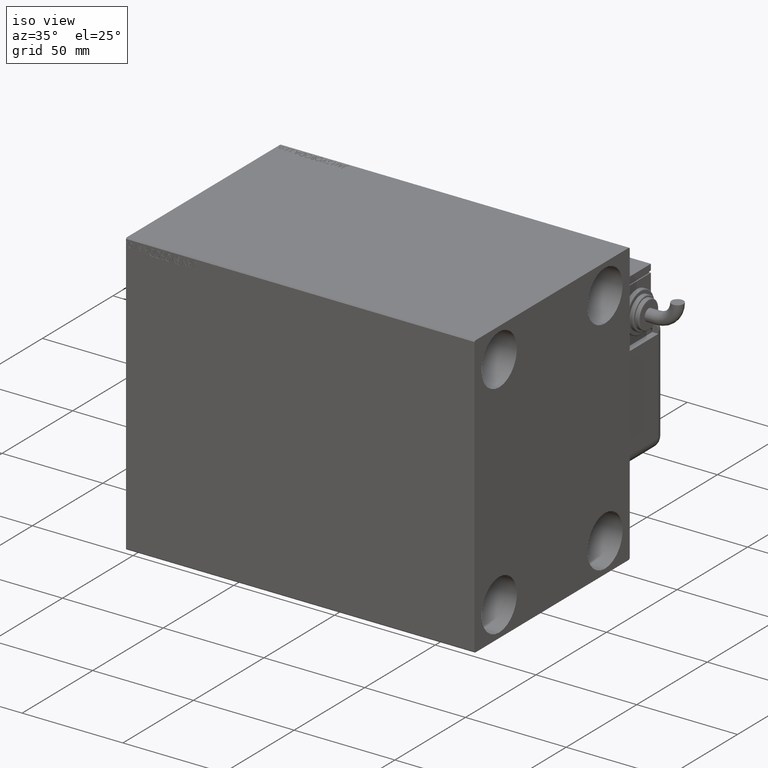
[diagram: clean part render]
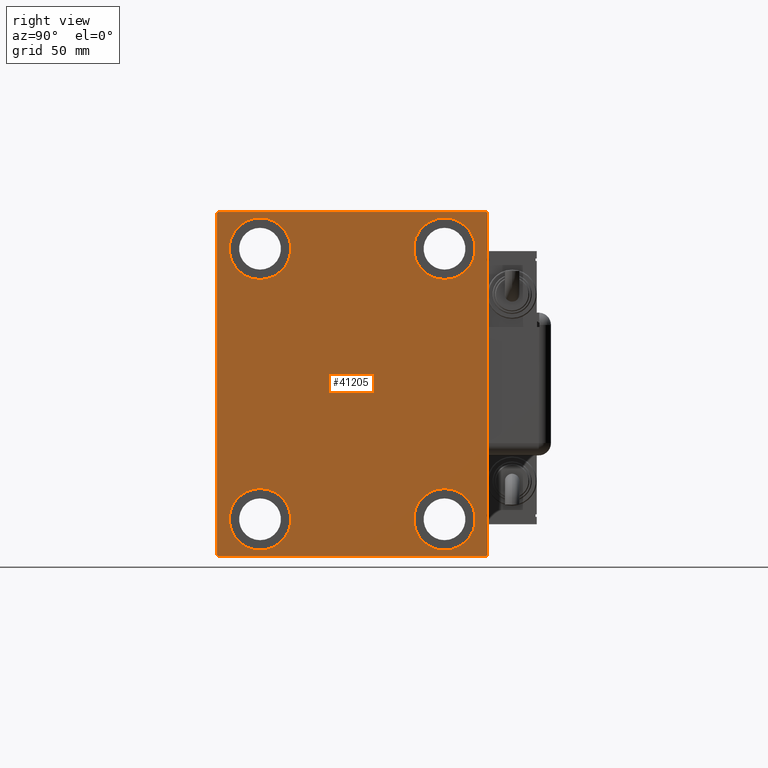
[diagram: tour spotlight — one face highlighted and labeled with its STEP entity id]
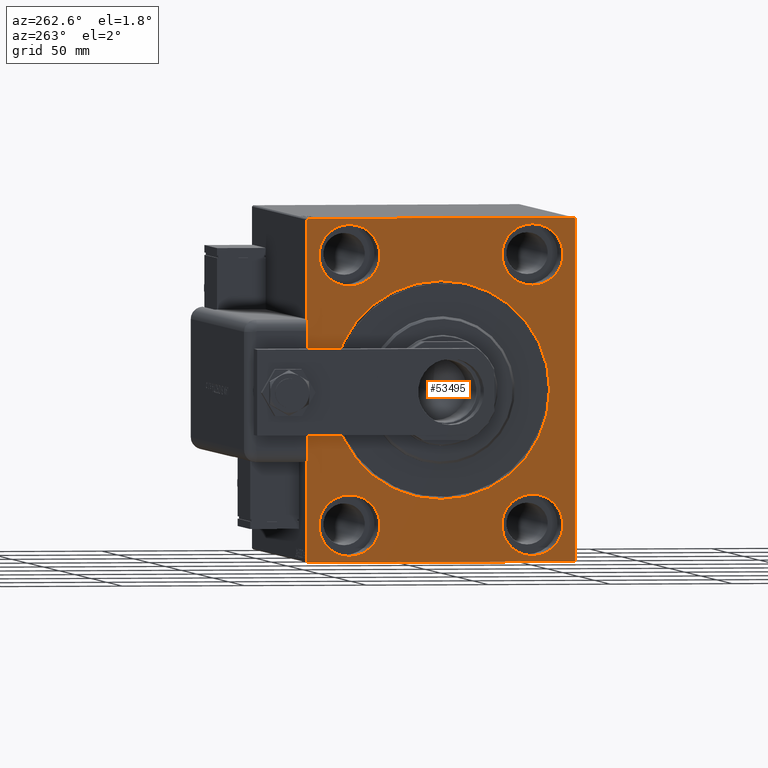
[diagram: tour spotlight — one face highlighted and labeled with its STEP entity id]
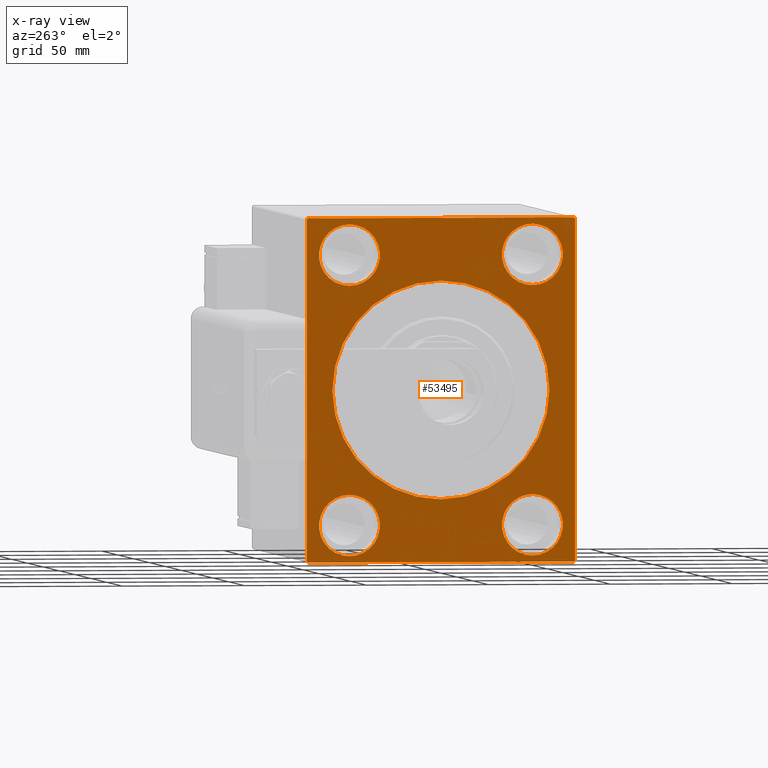
[diagram: x-ray of the same camera — body ghosted, this tour face saturated]
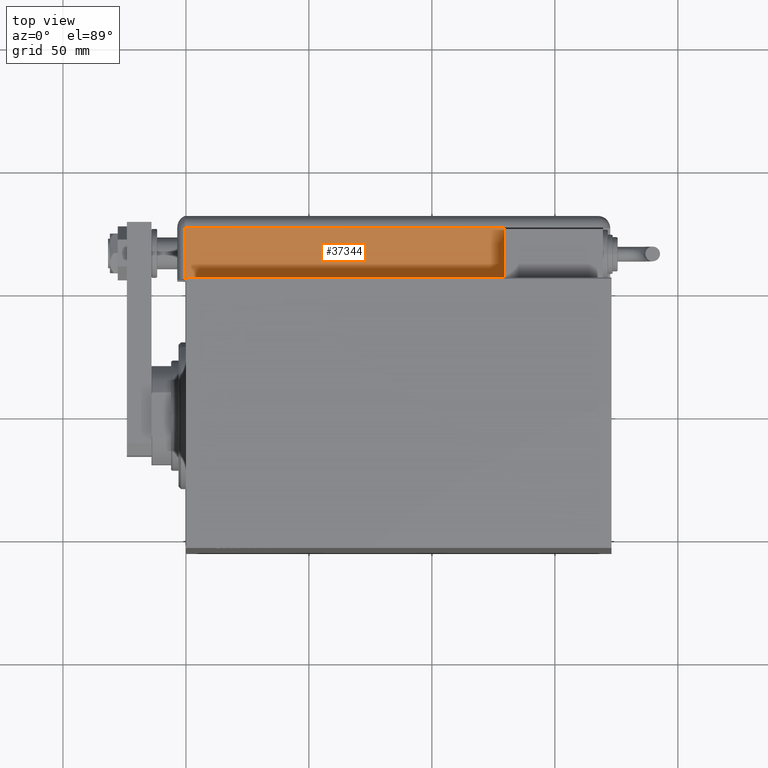
[diagram: tour spotlight — one face highlighted and labeled with its STEP entity id]
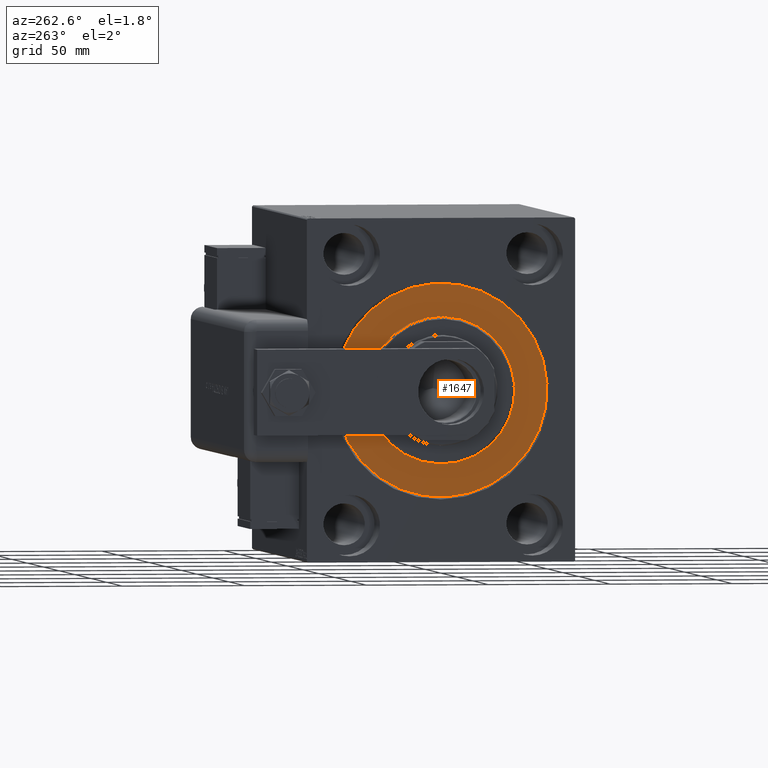
[diagram: tour spotlight — one face highlighted and labeled with its STEP entity id]
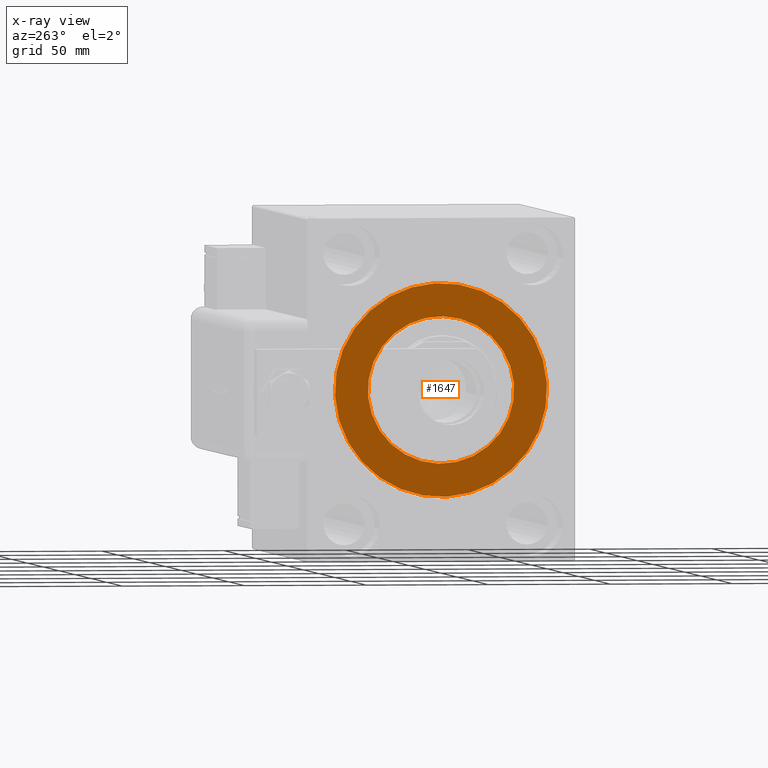
[diagram: x-ray of the same camera — body ghosted, this tour face saturated]
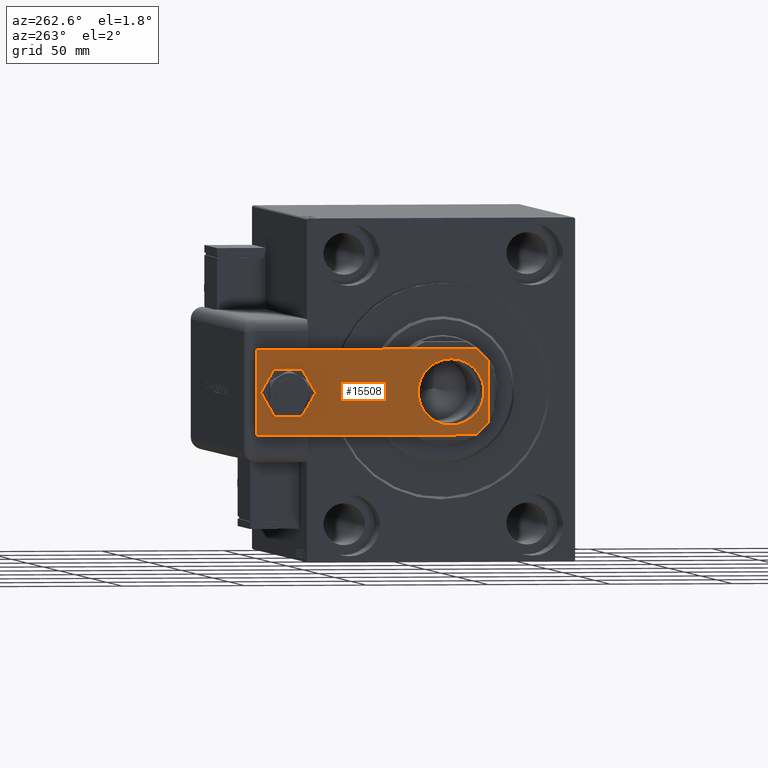
[diagram: tour spotlight — one face highlighted and labeled with its STEP entity id]
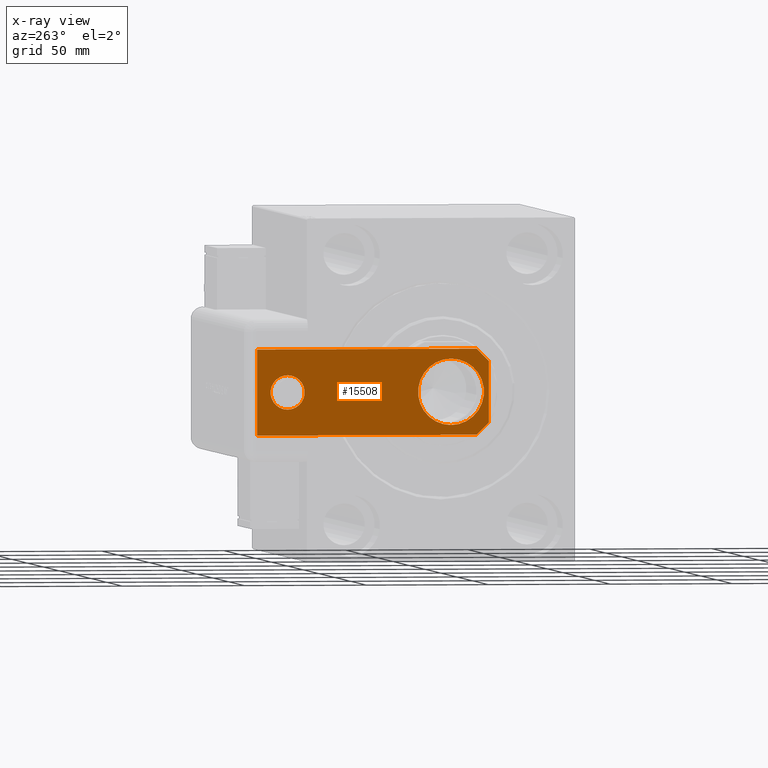
[diagram: x-ray of the same camera — body ghosted, this tour face saturated]
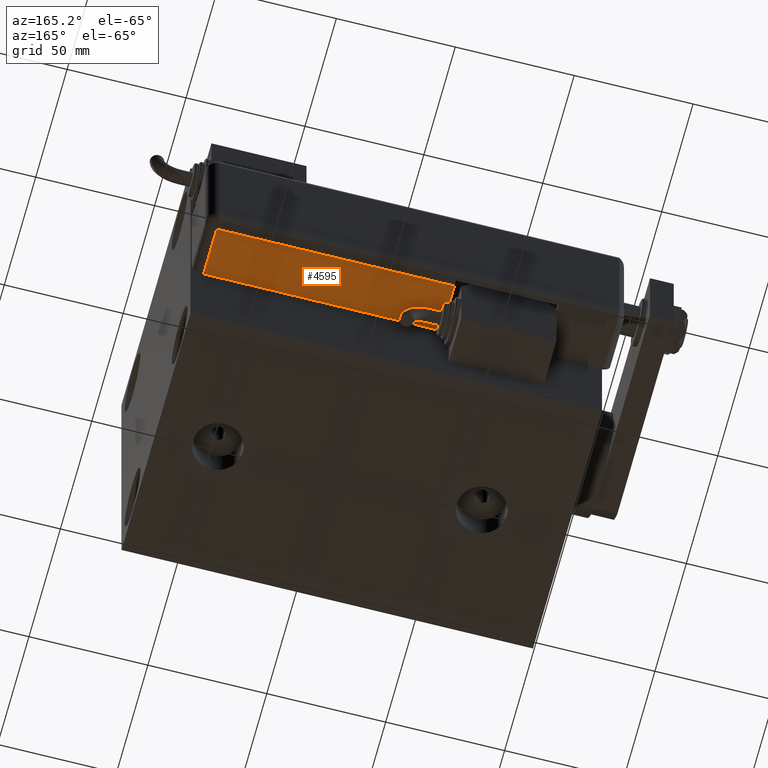
[diagram: tour spotlight — one face highlighted and labeled with its STEP entity id]
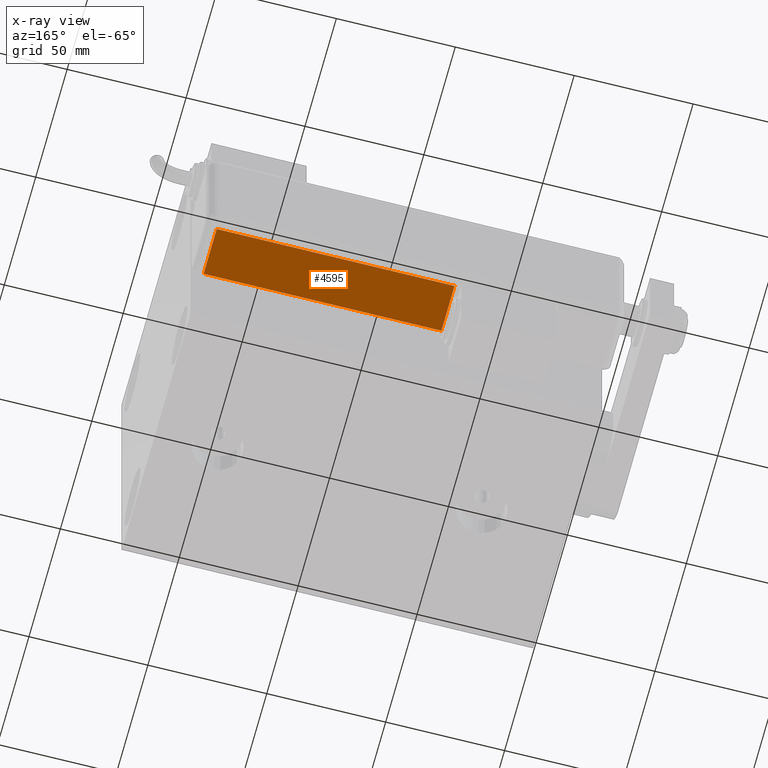
[diagram: x-ray of the same camera — body ghosted, this tour face saturated]
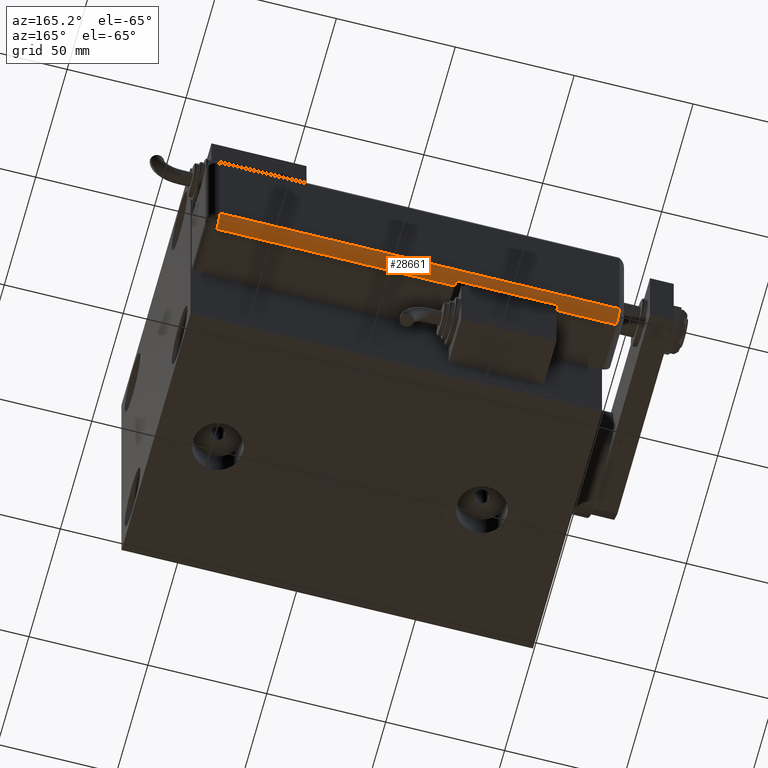
[diagram: tour spotlight — one face highlighted and labeled with its STEP entity id]
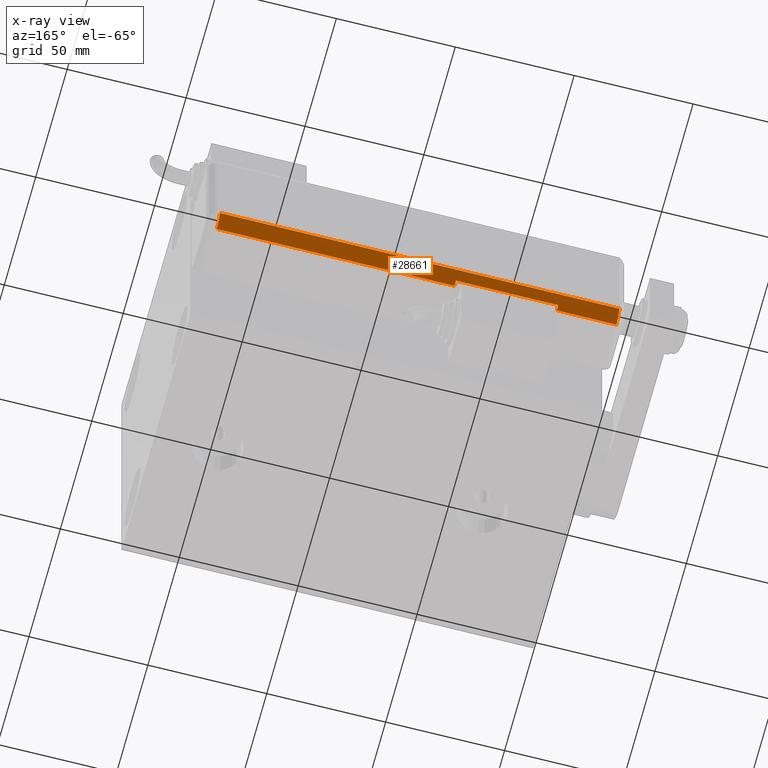
[diagram: x-ray of the same camera — body ghosted, this tour face saturated]
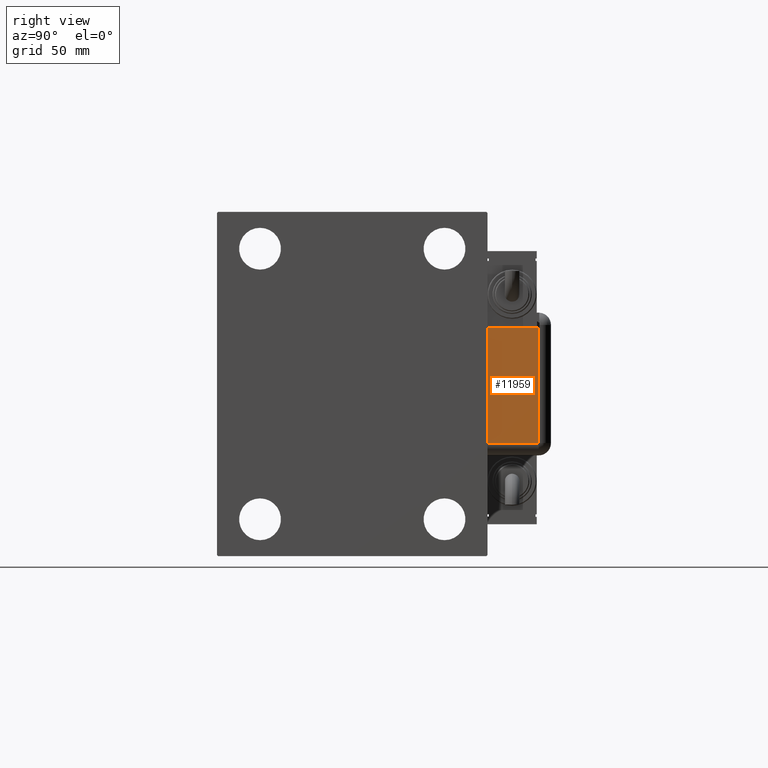
[diagram: tour spotlight — one face highlighted and labeled with its STEP entity id]
A machine part: a face-by-face anatomy tour. The part has 1246 B-rep faces; the first image is the clean iso view, then the 8 largest visible faces are spotlighted one at a time (largest first), each with its STEP entity span.

Face 1 — right view, entity #41205. In plain terms, the highlighted planar face has unit normal (1, 0, 0).
Definition (entity closure, byte-faithful):
#66 = DIRECTION ( 'NONE',  ( 1.000000000000000000, 0.000000000000000000, 0.000000000000000000 ) ) ;
#617 = VERTEX_POINT ( 'NONE', #15355 ) ;
#1310 = DIRECTION ( 'NONE',  ( 0.000000000000000000, 0.000000000000000000, 1.000000000000000000 ) ) ;
#1635 = DIRECTION ( 'NONE',  ( -1.000000000000000000, -0.000000000000000000, -0.000000000000000000 ) ) ;
#1899 = AXIS2_PLACEMENT_3D ( 'NONE', #37868, #19766, #1310 ) ;
#2020 = VECTOR ( 'NONE', #9659, 999.9999999999998863 ) ;
#2827 = DIRECTION ( 'NONE',  ( -1.000000000000000000, -0.000000000000000000, -0.000000000000000000 ) ) ;
#2931 = VECTOR ( 'NONE', #16481, 1000.000000000000000 ) ;
#3447 = EDGE_LOOP ( 'NONE', ( #8950, #43147 ) ) ;
#4179 = VECTOR ( 'NONE', #36744, 1000.000000000000114 ) ;
#4311 = CARTESIAN_POINT ( 'NONE',  ( 173.0000000000000000, 0.000000000000000000, 0.000000000000000000 ) ) ;
#5690 = DIRECTION ( 'NONE',  ( 0.000000000000000000, -1.000000000000000000, -1.261617073437677999E-16 ) ) ;
#5719 = CARTESIAN_POINT ( 'NONE',  ( 173.0000000000000000, -54.49999999999997868, -70.00000000000002842 ) ) ;
#5846 = EDGE_CURVE ( 'NONE', #8365, #56692, #16793, .T. ) ;
#6279 = LINE ( 'NONE', #56772, #29506 ) ;
#6515 = VERTEX_POINT ( 'NONE', #18124 ) ;
#7154 = CIRCLE ( 'NONE', #40922, 12.49999999999999645 ) ;
#7277 = DIRECTION ( 'NONE',  ( -1.000000000000000000, -0.000000000000000000, -0.000000000000000000 ) ) ;
#7482 = EDGE_CURVE ( 'NONE', #44168, #6515, #15891, .T. ) ;
#7499 = DIRECTION ( 'NONE',  ( 0.000000000000000000, 0.000000000000000000, 1.000000000000000000 ) ) ;
#8113 = ORIENTED_EDGE ( 'NONE', *, *, #32769, .T. ) ;
#8365 = VERTEX_POINT ( 'NONE', #32629 ) ;
#8847 = DIRECTION ( 'NONE',  ( 0.000000000000000000, 0.000000000000000000, -1.000000000000000000 ) ) ;
#8950 = ORIENTED_EDGE ( 'NONE', *, *, #56733, .T. ) ;
#9147 = FACE_OUTER_BOUND ( 'NONE', #32959, .T. ) ;
#9612 = LINE ( 'NONE', #18994, #20209 ) ;
#9659 = DIRECTION ( 'NONE',  ( -0.000000000000000000, 0.7071067811865574537, -0.7071067811865376918 ) ) ;
#10111 = DIRECTION ( 'NONE',  ( 0.000000000000000000, 0.000000000000000000, 1.000000000000000000 ) ) ;
#10422 = CARTESIAN_POINT ( 'NONE',  ( 173.0000000000000000, 37.49999999999997868, -54.99999999999999289 ) ) ;
#12036 = CARTESIAN_POINT ( 'NONE',  ( 173.0000000000000000, -54.50000000000000711, 69.99999999999998579 ) ) ;
#12339 = CARTESIAN_POINT ( 'NONE',  ( 173.0000000000000000, 37.50000000000000711, 42.50000000000000711 ) ) ;
#12661 = CARTESIAN_POINT ( 'NONE',  ( 173.0000000000000000, -55.00000000000000711, -69.50000000000001421 ) ) ;
#13236 = CARTESIAN_POINT ( 'NONE',  ( 173.0000000000000000, -37.50000000000000711, 67.50000000000000000 ) ) ;
#13243 = EDGE_CURVE ( 'NONE', #35474, #17582, #39701, .T. ) ;
#13399 = FACE_BOUND ( 'NONE', #52385, .T. ) ;
#14206 = LINE ( 'NONE', #51070, #2020 ) ;
#14686 = ORIENTED_EDGE ( 'NONE', *, *, #50842, .T. ) ;
#14715 = VECTOR ( 'NONE', #28627, 1000.000000000000000 ) ;
#15135 = CARTESIAN_POINT ( 'NONE',  ( 173.0000000000000000, 37.50000000000000711, 55.00000000000000711 ) ) ;
#15329 = CARTESIAN_POINT ( 'NONE',  ( 173.0000000000000000, -55.00000000000000711, 69.99999999999998579 ) ) ;
#15355 = CARTESIAN_POINT ( 'NONE',  ( 173.0000000000000000, 54.49999999999999289, -70.00000000000000000 ) ) ;
#15628 = AXIS2_PLACEMENT_3D ( 'NONE', #25641, #48900, #7499 ) ;
#15891 = CIRCLE ( 'NONE', #49670, 12.49999999999999645 ) ;
#16025 = EDGE_CURVE ( 'NONE', #43952, #34433, #47232, .T. ) ;
#16481 = DIRECTION ( 'NONE',  ( 0.000000000000000000, 1.000000000000000000, 2.523234146875355012E-16 ) ) ;
#16738 = CARTESIAN_POINT ( 'NONE',  ( 173.0000000000000000, -37.50000000000000711, 55.00000000000000711 ) ) ;
#16793 = CIRCLE ( 'NONE', #32229, 12.49999999999999645 ) ;
#17082 = LINE ( 'NONE', #35206, #2931 ) ;
#17582 = VERTEX_POINT ( 'NONE', #59051 ) ;
#18124 = CARTESIAN_POINT ( 'NONE',  ( 173.0000000000000000, -37.50000000000000711, 42.50000000000000711 ) ) ;
#18726 = DIRECTION ( 'NONE',  ( -1.000000000000000000, -0.000000000000000000, -0.000000000000000000 ) ) ;
#18994 = CARTESIAN_POINT ( 'NONE',  ( 173.0000000000000000, 54.99999999999999289, 70.00000000000000000 ) ) ;
#19766 = DIRECTION ( 'NONE',  ( -1.000000000000000000, -0.000000000000000000, -0.000000000000000000 ) ) ;
#19778 = CIRCLE ( 'NONE', #35196, 12.49999999999999645 ) ;
#20030 = AXIS2_PLACEMENT_3D ( 'NONE', #30246, #7277, #10111 ) ;
#20209 = VECTOR ( 'NONE', #5690, 1000.000000000000000 ) ;
#20716 = CARTESIAN_POINT ( 'NONE',  ( 173.0000000000000000, 55.00000000000002132, -70.00000000000000000 ) ) ;
#20836 = EDGE_CURVE ( 'NONE', #58270, #56537, #14206, .T. ) ;
#21015 = AXIS2_PLACEMENT_3D ( 'NONE', #4311, #66, #8847 ) ;
#22411 = VERTEX_POINT ( 'NONE', #51122 ) ;
#22623 = CIRCLE ( 'NONE', #31290, 12.49999999999999645 ) ;
#23395 = VERTEX_POINT ( 'NONE', #34775 ) ;
#23911 = EDGE_CURVE ( 'NONE', #34433, #58270, #46436, .T. ) ;
#24202 = DIRECTION ( 'NONE',  ( -1.000000000000000000, -0.000000000000000000, -0.000000000000000000 ) ) ;
#24312 = CIRCLE ( 'NONE', #15628, 12.49999999999999645 ) ;
#25641 = CARTESIAN_POINT ( 'NONE',  ( 173.0000000000000000, -37.50000000000002132, -54.99999999999999289 ) ) ;
#25846 = EDGE_CURVE ( 'NONE', #617, #35474, #35042, .T. ) ;
#27202 = CARTESIAN_POINT ( 'NONE',  ( 173.0000000000000000, 54.49999999999996447, 70.00000000000000000 ) ) ;
#27290 = FACE_BOUND ( 'NONE', #39852, .T. ) ;
#27723 = CIRCLE ( 'NONE', #20030, 12.49999999999999645 ) ;
#28627 = DIRECTION ( 'NONE',  ( 0.000000000000000000, 0.000000000000000000, -1.000000000000000000 ) ) ;
#28814 = EDGE_CURVE ( 'NONE', #56692, #8365, #22623, .T. ) ;
#29186 = VERTEX_POINT ( 'NONE', #55116 ) ;
#29437 = ORIENTED_EDGE ( 'NONE', *, *, #7482, .T. ) ;
#29506 = VECTOR ( 'NONE', #33183, 1000.000000000000114 ) ;
#30246 = CARTESIAN_POINT ( 'NONE',  ( 173.0000000000000000, -37.50000000000002132, -54.99999999999999289 ) ) ;
#30593 = VECTOR ( 'NONE', #58174, 1000.000000000000000 ) ;
#30974 = ORIENTED_EDGE ( 'NONE', *, *, #35263, .T. ) ;
#31290 = AXIS2_PLACEMENT_3D ( 'NONE', #15135, #24202, #50796 ) ;
#31826 = FACE_BOUND ( 'NONE', #3447, .T. ) ;
#32229 = AXIS2_PLACEMENT_3D ( 'NONE', #58599, #58000, #35606 ) ;
#32629 = CARTESIAN_POINT ( 'NONE',  ( 173.0000000000000000, 37.50000000000000711, 67.50000000000000000 ) ) ;
#32769 = EDGE_CURVE ( 'NONE', #29186, #23395, #7154, .T. ) ;
#32959 = EDGE_LOOP ( 'NONE', ( #14686, #33674, #56045, #52547, #53110, #34663, #34311, #30974 ) ) ;
#33183 = DIRECTION ( 'NONE',  ( -0.000000000000000000, -0.7071067811865474617, 0.7071067811865474617 ) ) ;
#33674 = ORIENTED_EDGE ( 'NONE', *, *, #16025, .T. ) ;
#33753 = EDGE_CURVE ( 'NONE', #6515, #44168, #19778, .T. ) ;
#34311 = ORIENTED_EDGE ( 'NONE', *, *, #13243, .T. ) ;
#34433 = VERTEX_POINT ( 'NONE', #41331 ) ;
#34663 = ORIENTED_EDGE ( 'NONE', *, *, #25846, .T. ) ;
#34775 = CARTESIAN_POINT ( 'NONE',  ( 173.0000000000000000, 37.49999999999997868, -42.49999999999999289 ) ) ;
#35042 = LINE ( 'NONE', #44396, #4179 ) ;
#35196 = AXIS2_PLACEMENT_3D ( 'NONE', #16738, #2827, #58461 ) ;
#35206 = CARTESIAN_POINT ( 'NONE',  ( 173.0000000000000000, -55.00000000000000711, -70.00000000000002842 ) ) ;
#35263 = EDGE_CURVE ( 'NONE', #17582, #39381, #6279, .T. ) ;
#35474 = VERTEX_POINT ( 'NONE', #40976 ) ;
#35606 = DIRECTION ( 'NONE',  ( 0.000000000000000000, 0.000000000000000000, 1.000000000000000000 ) ) ;
#36339 = FACE_BOUND ( 'NONE', #47515, .T. ) ;
#36744 = DIRECTION ( 'NONE',  ( -0.000000000000000000, 0.7071067811865474617, 0.7071067811865474617 ) ) ;
#37868 = CARTESIAN_POINT ( 'NONE',  ( 173.0000000000000000, 37.49999999999997868, -54.99999999999999289 ) ) ;
#37884 = VERTEX_POINT ( 'NONE', #58388 ) ;
#39381 = VERTEX_POINT ( 'NONE', #27202 ) ;
#39701 = LINE ( 'NONE', #20716, #30593 ) ;
#39852 = EDGE_LOOP ( 'NONE', ( #8113, #57595 ) ) ;
#40125 = EDGE_CURVE ( 'NONE', #22411, #37884, #27723, .T. ) ;
#40922 = AXIS2_PLACEMENT_3D ( 'NONE', #10422, #1635, #53013 ) ;
#40976 = CARTESIAN_POINT ( 'NONE',  ( 173.0000000000000000, 55.00000000000002132, -69.49999999999997158 ) ) ;
#41205 = ADVANCED_FACE ( 'NONE', ( #27290, #36339, #13399, #31826, #9147 ), #50254, .T. ) ;
#41331 = CARTESIAN_POINT ( 'NONE',  ( 173.0000000000000000, -55.00000000000000711, 69.49999999999998579 ) ) ;
#41967 = CARTESIAN_POINT ( 'NONE',  ( 173.0000000000000000, -37.50000000000000711, 55.00000000000000711 ) ) ;
#42579 = VECTOR ( 'NONE', #42680, 1000.000000000000114 ) ;
#42680 = DIRECTION ( 'NONE',  ( 0.000000000000000000, -0.7071067811865474617, -0.7071067811865474617 ) ) ;
#43147 = ORIENTED_EDGE ( 'NONE', *, *, #40125, .T. ) ;
#43952 = VERTEX_POINT ( 'NONE', #12036 ) ;
#44168 = VERTEX_POINT ( 'NONE', #13236 ) ;
#44396 = CARTESIAN_POINT ( 'NONE',  ( 173.0000000000000000, 62.25000000000000000, -62.25000000000000000 ) ) ;
#46436 = LINE ( 'NONE', #15329, #14715 ) ;
#47232 = LINE ( 'NONE', #56625, #42579 ) ;
#47515 = EDGE_LOOP ( 'NONE', ( #57331, #29437 ) ) ;
#48900 = DIRECTION ( 'NONE',  ( -1.000000000000000000, -0.000000000000000000, -0.000000000000000000 ) ) ;
#49670 = AXIS2_PLACEMENT_3D ( 'NONE', #41967, #18726, #56514 ) ;
#50254 = PLANE ( 'NONE',  #21015 ) ;
#50796 = DIRECTION ( 'NONE',  ( 0.000000000000000000, 0.000000000000000000, 1.000000000000000000 ) ) ;
#50842 = EDGE_CURVE ( 'NONE', #39381, #43952, #9612, .T. ) ;
#51070 = CARTESIAN_POINT ( 'NONE',  ( 173.0000000000000000, -62.24999999999924682, -62.25000000000098055 ) ) ;
#51122 = CARTESIAN_POINT ( 'NONE',  ( 173.0000000000000000, -37.50000000000002132, -42.49999999999999289 ) ) ;
#51593 = EDGE_CURVE ( 'NONE', #23395, #29186, #53080, .T. ) ;
#52385 = EDGE_LOOP ( 'NONE', ( #52832, #52612 ) ) ;
#52455 = EDGE_CURVE ( 'NONE', #56537, #617, #17082, .T. ) ;
#52547 = ORIENTED_EDGE ( 'NONE', *, *, #20836, .T. ) ;
#52612 = ORIENTED_EDGE ( 'NONE', *, *, #5846, .T. ) ;
#52832 = ORIENTED_EDGE ( 'NONE', *, *, #28814, .T. ) ;
#53013 = DIRECTION ( 'NONE',  ( 0.000000000000000000, 0.000000000000000000, 1.000000000000000000 ) ) ;
#53080 = CIRCLE ( 'NONE', #1899, 12.49999999999999645 ) ;
#53110 = ORIENTED_EDGE ( 'NONE', *, *, #52455, .T. ) ;
#55116 = CARTESIAN_POINT ( 'NONE',  ( 173.0000000000000000, 37.49999999999997868, -67.49999999999998579 ) ) ;
#56045 = ORIENTED_EDGE ( 'NONE', *, *, #23911, .T. ) ;
#56514 = DIRECTION ( 'NONE',  ( 0.000000000000000000, 0.000000000000000000, 1.000000000000000000 ) ) ;
#56537 = VERTEX_POINT ( 'NONE', #5719 ) ;
#56625 = CARTESIAN_POINT ( 'NONE',  ( 173.0000000000000000, -62.25000000000000000, 62.25000000000000000 ) ) ;
#56692 = VERTEX_POINT ( 'NONE', #12339 ) ;
#56733 = EDGE_CURVE ( 'NONE', #37884, #22411, #24312, .T. ) ;
#56772 = CARTESIAN_POINT ( 'NONE',  ( 173.0000000000000000, 62.24999999999997868, 62.24999999999997868 ) ) ;
#57331 = ORIENTED_EDGE ( 'NONE', *, *, #33753, .T. ) ;
#57595 = ORIENTED_EDGE ( 'NONE', *, *, #51593, .T. ) ;
#58000 = DIRECTION ( 'NONE',  ( -1.000000000000000000, -0.000000000000000000, -0.000000000000000000 ) ) ;
#58174 = DIRECTION ( 'NONE',  ( 0.000000000000000000, -1.982541115402065110E-16, 1.000000000000000000 ) ) ;
#58270 = VERTEX_POINT ( 'NONE', #12661 ) ;
#58388 = CARTESIAN_POINT ( 'NONE',  ( 173.0000000000000000, -37.50000000000002132, -67.49999999999998579 ) ) ;
#58461 = DIRECTION ( 'NONE',  ( 0.000000000000000000, 0.000000000000000000, 1.000000000000000000 ) ) ;
#58599 = CARTESIAN_POINT ( 'NONE',  ( 173.0000000000000000, 37.50000000000000711, 55.00000000000000711 ) ) ;
#59051 = CARTESIAN_POINT ( 'NONE',  ( 173.0000000000000000, 54.99999999999999289, 69.49999999999997158 ) ) ;

Face 2 — auxiliary view, entity #53495. An x-ray twin of the same camera follows (body ghosted, this face saturated) — the face is partly hidden behind the body. In plain terms, the highlighted planar face has unit normal (1, 0, 0).
Definition (entity closure, byte-faithful):
#175 = CARTESIAN_POINT ( 'NONE',  ( 0.000000000000000000, -55.00000000000000711, 69.99999999999998579 ) ) ;
#380 = LINE ( 'NONE', #50566, #58125 ) ;
#419 = DIRECTION ( 'NONE',  ( -1.000000000000000000, 0.000000000000000000, 0.000000000000000000 ) ) ;
#461 = CARTESIAN_POINT ( 'NONE',  ( 0.000000000000000000, 37.50000000000000711, 55.00000000000000711 ) ) ;
#1605 = VERTEX_POINT ( 'NONE', #21790 ) ;
#1607 = CARTESIAN_POINT ( 'NONE',  ( 0.000000000000000000, 37.49999999999997868, -42.49999999999999289 ) ) ;
#2363 = AXIS2_PLACEMENT_3D ( 'NONE', #21779, #31440, #12696 ) ;
#2642 = DIRECTION ( 'NONE',  ( 0.000000000000000000, 0.000000000000000000, 1.000000000000000000 ) ) ;
#3225 = EDGE_CURVE ( 'NONE', #27164, #52690, #54384, .T. ) ;
#3276 = CARTESIAN_POINT ( 'NONE',  ( 0.000000000000000000, -37.50000000000002132, -67.49999999999998579 ) ) ;
#3582 = AXIS2_PLACEMENT_3D ( 'NONE', #14163, #19297, #9616 ) ;
#3792 = FACE_BOUND ( 'NONE', #6149, .T. ) ;
#3864 = CARTESIAN_POINT ( 'NONE',  ( 0.000000000000000000, 54.99999999999999289, 69.49999999999997158 ) ) ;
#4001 = DIRECTION ( 'NONE',  ( 0.000000000000000000, 0.000000000000000000, -1.000000000000000000 ) ) ;
#4380 = FACE_BOUND ( 'NONE', #8374, .T. ) ;
#4635 = CARTESIAN_POINT ( 'NONE',  ( 0.000000000000000000, -37.50000000000000711, 42.50000000000000711 ) ) ;
#4983 = CARTESIAN_POINT ( 'NONE',  ( 0.000000000000000000, 55.00000000000002132, -70.00000000000000000 ) ) ;
#5057 = EDGE_CURVE ( 'NONE', #46130, #11553, #6186, .T. ) ;
#5293 = DIRECTION ( 'NONE',  ( 0.000000000000000000, -1.982541115402065110E-16, 1.000000000000000000 ) ) ;
#5689 = CIRCLE ( 'NONE', #13294, 12.49999999999999645 ) ;
#5874 = VERTEX_POINT ( 'NONE', #3276 ) ;
#6149 = EDGE_LOOP ( 'NONE', ( #33999, #42993 ) ) ;
#6186 = CIRCLE ( 'NONE', #13906, 12.49999999999999645 ) ;
#6516 = EDGE_CURVE ( 'NONE', #18555, #5874, #14944, .T. ) ;
#6877 = CARTESIAN_POINT ( 'NONE',  ( 0.000000000000000000, 37.49999999999997868, -54.99999999999999289 ) ) ;
#6911 = LINE ( 'NONE', #38648, #38645 ) ;
#7853 = CARTESIAN_POINT ( 'NONE',  ( 0.000000000000000000, 54.49999999999996447, 70.00000000000000000 ) ) ;
#8224 = VERTEX_POINT ( 'NONE', #49360 ) ;
#8327 = VECTOR ( 'NONE', #39764, 1000.000000000000114 ) ;
#8364 = VERTEX_POINT ( 'NONE', #55605 ) ;
#8374 = EDGE_LOOP ( 'NONE', ( #24847, #39947 ) ) ;
#8554 = CARTESIAN_POINT ( 'NONE',  ( 0.000000000000000000, 0.000000000000000000, 0.000000000000000000 ) ) ;
#8791 = CARTESIAN_POINT ( 'NONE',  ( 0.000000000000000000, -37.50000000000002132, -42.49999999999999289 ) ) ;
#8964 = AXIS2_PLACEMENT_3D ( 'NONE', #6877, #34977, #2642 ) ;
#9239 = ORIENTED_EDGE ( 'NONE', *, *, #13854, .T. ) ;
#9549 = LINE ( 'NONE', #27984, #32751 ) ;
#9616 = DIRECTION ( 'NONE',  ( 0.000000000000000000, 0.000000000000000000, -1.000000000000000000 ) ) ;
#9856 = LINE ( 'NONE', #175, #35514 ) ;
#10378 = DIRECTION ( 'NONE',  ( -1.000000000000000000, 0.000000000000000000, 0.000000000000000000 ) ) ;
#11553 = VERTEX_POINT ( 'NONE', #26596 ) ;
#12381 = ORIENTED_EDGE ( 'NONE', *, *, #45688, .T. ) ;
#12696 = DIRECTION ( 'NONE',  ( 0.000000000000000000, 0.000000000000000000, 1.000000000000000000 ) ) ;
#12873 = DIRECTION ( 'NONE',  ( 1.000000000000000000, 0.000000000000000000, 0.000000000000000000 ) ) ;
#13005 = LINE ( 'NONE', #7853, #57883 ) ;
#13116 = EDGE_CURVE ( 'NONE', #5874, #18555, #31555, .T. ) ;
#13294 = AXIS2_PLACEMENT_3D ( 'NONE', #46325, #10378, #46624 ) ;
#13445 = ORIENTED_EDGE ( 'NONE', *, *, #5057, .F. ) ;
#13854 = EDGE_CURVE ( 'NONE', #33733, #44093, #53808, .T. ) ;
#13906 = AXIS2_PLACEMENT_3D ( 'NONE', #52189, #34327, #30088 ) ;
#14057 = FACE_BOUND ( 'NONE', #16895, .T. ) ;
#14163 = CARTESIAN_POINT ( 'NONE',  ( 0.000000000000000000, 0.000000000000000000, 0.000000000000000000 ) ) ;
#14168 = VERTEX_POINT ( 'NONE', #4635 ) ;
#14349 = CARTESIAN_POINT ( 'NONE',  ( 0.000000000000000000, -54.50000000000000711, 69.99999999999998579 ) ) ;
#14551 = CARTESIAN_POINT ( 'NONE',  ( 0.000000000000000000, -37.50000000000000711, 67.50000000000000000 ) ) ;
#14944 = CIRCLE ( 'NONE', #2363, 12.49999999999999645 ) ;
#14982 = DIRECTION ( 'NONE',  ( 0.000000000000000000, 0.000000000000000000, 1.000000000000000000 ) ) ;
#15577 = ORIENTED_EDGE ( 'NONE', *, *, #38659, .F. ) ;
#16263 = ORIENTED_EDGE ( 'NONE', *, *, #46639, .F. ) ;
#16895 = EDGE_LOOP ( 'NONE', ( #51215, #51890 ) ) ;
#17512 = CARTESIAN_POINT ( 'NONE',  ( 0.000000000000000000, -54.49999999999997868, -70.00000000000002842 ) ) ;
#18041 = AXIS2_PLACEMENT_3D ( 'NONE', #23447, #50947, #14982 ) ;
#18555 = VERTEX_POINT ( 'NONE', #8791 ) ;
#18672 = CIRCLE ( 'NONE', #54415, 12.49999999999999645 ) ;
#19297 = DIRECTION ( 'NONE',  ( 1.000000000000000000, 0.000000000000000000, 0.000000000000000000 ) ) ;
#20737 = ORIENTED_EDGE ( 'NONE', *, *, #54134, .F. ) ;
#21081 = VERTEX_POINT ( 'NONE', #3864 ) ;
#21779 = CARTESIAN_POINT ( 'NONE',  ( 0.000000000000000000, -37.50000000000002132, -54.99999999999999289 ) ) ;
#21790 = CARTESIAN_POINT ( 'NONE',  ( 0.000000000000000000, 54.49999999999996447, 70.00000000000000000 ) ) ;
#23447 = CARTESIAN_POINT ( 'NONE',  ( 0.000000000000000000, -37.50000000000002132, -54.99999999999999289 ) ) ;
#23459 = DIRECTION ( 'NONE',  ( -0.000000000000000000, 0.7071067811865474617, 0.7071067811865474617 ) ) ;
#24036 = VECTOR ( 'NONE', #59607, 1000.000000000000000 ) ;
#24847 = ORIENTED_EDGE ( 'NONE', *, *, #6516, .F. ) ;
#25895 = LINE ( 'NONE', #35245, #8327 ) ;
#26212 = EDGE_CURVE ( 'NONE', #14168, #39274, #26366, .T. ) ;
#26299 = CARTESIAN_POINT ( 'NONE',  ( 0.000000000000000000, 54.49999999999999289, -70.00000000000000000 ) ) ;
#26335 = ORIENTED_EDGE ( 'NONE', *, *, #49339, .T. ) ;
#26366 = CIRCLE ( 'NONE', #52436, 12.49999999999999645 ) ;
#26596 = CARTESIAN_POINT ( 'NONE',  ( 0.000000000000000000, 37.50000000000000711, 67.50000000000000000 ) ) ;
#26993 = DIRECTION ( 'NONE',  ( 1.000000000000000000, 0.000000000000000000, 0.000000000000000000 ) ) ;
#27164 = VERTEX_POINT ( 'NONE', #39510 ) ;
#27984 = CARTESIAN_POINT ( 'NONE',  ( 0.000000000000000000, -55.00000000000000711, 69.49999999999998579 ) ) ;
#28082 = AXIS2_PLACEMENT_3D ( 'NONE', #461, #56395, #32208 ) ;
#28283 = ORIENTED_EDGE ( 'NONE', *, *, #38591, .T. ) ;
#28657 = ORIENTED_EDGE ( 'NONE', *, *, #43500, .F. ) ;
#30088 = DIRECTION ( 'NONE',  ( 0.000000000000000000, 0.000000000000000000, 1.000000000000000000 ) ) ;
#30973 = EDGE_LOOP ( 'NONE', ( #26335, #9239 ) ) ;
#31023 = EDGE_CURVE ( 'NONE', #52690, #27164, #18672, .T. ) ;
#31440 = DIRECTION ( 'NONE',  ( -1.000000000000000000, 0.000000000000000000, 0.000000000000000000 ) ) ;
#31555 = CIRCLE ( 'NONE', #18041, 12.49999999999999645 ) ;
#31591 = EDGE_LOOP ( 'NONE', ( #54888, #13445 ) ) ;
#31801 = CARTESIAN_POINT ( 'NONE',  ( 0.000000000000000000, -55.00000000000000711, -70.00000000000002842 ) ) ;
#31856 = ORIENTED_EDGE ( 'NONE', *, *, #58019, .T. ) ;
#32208 = DIRECTION ( 'NONE',  ( 0.000000000000000000, 0.000000000000000000, 1.000000000000000000 ) ) ;
#32720 = DIRECTION ( 'NONE',  ( -0.000000000000000000, -0.7071067811865574537, 0.7071067811865376918 ) ) ;
#32751 = VECTOR ( 'NONE', #23459, 1000.000000000000114 ) ;
#33053 = DIRECTION ( 'NONE',  ( 0.000000000000000000, 0.000000000000000000, 1.000000000000000000 ) ) ;
#33733 = VERTEX_POINT ( 'NONE', #44518 ) ;
#33820 = AXIS2_PLACEMENT_3D ( 'NONE', #45187, #12873, #54864 ) ;
#33999 = ORIENTED_EDGE ( 'NONE', *, *, #31023, .F. ) ;
#34327 = DIRECTION ( 'NONE',  ( -1.000000000000000000, 0.000000000000000000, 0.000000000000000000 ) ) ;
#34425 = VERTEX_POINT ( 'NONE', #44983 ) ;
#34977 = DIRECTION ( 'NONE',  ( -1.000000000000000000, 0.000000000000000000, 0.000000000000000000 ) ) ;
#35045 = CARTESIAN_POINT ( 'NONE',  ( 0.000000000000000000, 37.50000000000000711, 42.50000000000000711 ) ) ;
#35245 = CARTESIAN_POINT ( 'NONE',  ( 0.000000000000000000, 55.00000000000002132, -69.49999999999997158 ) ) ;
#35354 = ORIENTED_EDGE ( 'NONE', *, *, #50294, .T. ) ;
#35514 = VECTOR ( 'NONE', #36746, 1000.000000000000000 ) ;
#36130 = PLANE ( 'NONE',  #33820 ) ;
#36494 = VERTEX_POINT ( 'NONE', #14349 ) ;
#36739 = EDGE_LOOP ( 'NONE', ( #16263, #12381, #20737, #35354, #15577, #28283, #28657, #31856 ) ) ;
#36746 = DIRECTION ( 'NONE',  ( 0.000000000000000000, 0.000000000000000000, -1.000000000000000000 ) ) ;
#37060 = CARTESIAN_POINT ( 'NONE',  ( 0.000000000000000000, 0.000000000000000000, 44.49999999999995737 ) ) ;
#37583 = CARTESIAN_POINT ( 'NONE',  ( 0.000000000000000000, -37.50000000000000711, 55.00000000000000711 ) ) ;
#38591 = EDGE_CURVE ( 'NONE', #8224, #42771, #25895, .T. ) ;
#38645 = VECTOR ( 'NONE', #48617, 1000.000000000000000 ) ;
#38648 = CARTESIAN_POINT ( 'NONE',  ( 0.000000000000000000, 54.99999999999999289, 70.00000000000000000 ) ) ;
#38659 = EDGE_CURVE ( 'NONE', #8224, #21081, #56073, .T. ) ;
#39274 = VERTEX_POINT ( 'NONE', #14551 ) ;
#39285 = DIRECTION ( 'NONE',  ( -1.000000000000000000, 0.000000000000000000, 0.000000000000000000 ) ) ;
#39510 = CARTESIAN_POINT ( 'NONE',  ( 0.000000000000000000, 37.49999999999997868, -67.49999999999998579 ) ) ;
#39764 = DIRECTION ( 'NONE',  ( 0.000000000000000000, -0.7071067811865474617, -0.7071067811865474617 ) ) ;
#39947 = ORIENTED_EDGE ( 'NONE', *, *, #13116, .F. ) ;
#40945 = FACE_BOUND ( 'NONE', #30973, .T. ) ;
#41823 = FACE_OUTER_BOUND ( 'NONE', #36739, .T. ) ;
#42771 = VERTEX_POINT ( 'NONE', #26299 ) ;
#42993 = ORIENTED_EDGE ( 'NONE', *, *, #3225, .F. ) ;
#43500 = EDGE_CURVE ( 'NONE', #45272, #42771, #54774, .T. ) ;
#44093 = VERTEX_POINT ( 'NONE', #37060 ) ;
#44252 = CIRCLE ( 'NONE', #53955, 44.49999999999995737 ) ;
#44518 = CARTESIAN_POINT ( 'NONE',  ( 0.000000000000000000, 5.449678256205716459E-15, -44.49999999999995737 ) ) ;
#44838 = EDGE_CURVE ( 'NONE', #39274, #14168, #5689, .T. ) ;
#44983 = CARTESIAN_POINT ( 'NONE',  ( 0.000000000000000000, -55.00000000000000711, -69.50000000000001421 ) ) ;
#45013 = DIRECTION ( 'NONE',  ( -0.000000000000000000, 0.7071067811865474617, -0.7071067811865474617 ) ) ;
#45187 = CARTESIAN_POINT ( 'NONE',  ( 0.000000000000000000, 0.000000000000000000, 0.000000000000000000 ) ) ;
#45272 = VERTEX_POINT ( 'NONE', #17512 ) ;
#45688 = EDGE_CURVE ( 'NONE', #8364, #36494, #9549, .T. ) ;
#46068 = FACE_BOUND ( 'NONE', #31591, .T. ) ;
#46130 = VERTEX_POINT ( 'NONE', #35045 ) ;
#46325 = CARTESIAN_POINT ( 'NONE',  ( 0.000000000000000000, -37.50000000000000711, 55.00000000000000711 ) ) ;
#46624 = DIRECTION ( 'NONE',  ( 0.000000000000000000, 0.000000000000000000, 1.000000000000000000 ) ) ;
#46639 = EDGE_CURVE ( 'NONE', #8364, #34425, #9856, .T. ) ;
#47782 = DIRECTION ( 'NONE',  ( 0.000000000000000000, 0.000000000000000000, 1.000000000000000000 ) ) ;
#48617 = DIRECTION ( 'NONE',  ( 0.000000000000000000, -1.000000000000000000, -1.261617073437677999E-16 ) ) ;
#49339 = EDGE_CURVE ( 'NONE', #44093, #33733, #44252, .T. ) ;
#49360 = CARTESIAN_POINT ( 'NONE',  ( 0.000000000000000000, 55.00000000000002132, -69.49999999999997158 ) ) ;
#50294 = EDGE_CURVE ( 'NONE', #1605, #21081, #13005, .T. ) ;
#50566 = CARTESIAN_POINT ( 'NONE',  ( 0.000000000000000000, -54.49999999999997868, -70.00000000000002842 ) ) ;
#50947 = DIRECTION ( 'NONE',  ( -1.000000000000000000, 0.000000000000000000, 0.000000000000000000 ) ) ;
#51215 = ORIENTED_EDGE ( 'NONE', *, *, #44838, .F. ) ;
#51255 = CIRCLE ( 'NONE', #28082, 12.49999999999999645 ) ;
#51791 = VECTOR ( 'NONE', #5293, 1000.000000000000000 ) ;
#51890 = ORIENTED_EDGE ( 'NONE', *, *, #26212, .F. ) ;
#52189 = CARTESIAN_POINT ( 'NONE',  ( 0.000000000000000000, 37.50000000000000711, 55.00000000000000711 ) ) ;
#52436 = AXIS2_PLACEMENT_3D ( 'NONE', #37583, #419, #33053 ) ;
#52690 = VERTEX_POINT ( 'NONE', #1607 ) ;
#52918 = CARTESIAN_POINT ( 'NONE',  ( 0.000000000000000000, 37.49999999999997868, -54.99999999999999289 ) ) ;
#53495 = ADVANCED_FACE ( 'NONE', ( #40945, #3792, #14057, #46068, #4380, #41823 ), #36130, .F. ) ;
#53808 = CIRCLE ( 'NONE', #3582, 44.49999999999995737 ) ;
#53955 = AXIS2_PLACEMENT_3D ( 'NONE', #8554, #26993, #4001 ) ;
#54134 = EDGE_CURVE ( 'NONE', #1605, #36494, #6911, .T. ) ;
#54384 = CIRCLE ( 'NONE', #8964, 12.49999999999999645 ) ;
#54415 = AXIS2_PLACEMENT_3D ( 'NONE', #52918, #39285, #47782 ) ;
#54774 = LINE ( 'NONE', #31801, #24036 ) ;
#54864 = DIRECTION ( 'NONE',  ( 0.000000000000000000, 0.000000000000000000, -1.000000000000000000 ) ) ;
#54888 = ORIENTED_EDGE ( 'NONE', *, *, #55457, .F. ) ;
#55457 = EDGE_CURVE ( 'NONE', #11553, #46130, #51255, .T. ) ;
#55605 = CARTESIAN_POINT ( 'NONE',  ( 0.000000000000000000, -55.00000000000000711, 69.49999999999998579 ) ) ;
#56073 = LINE ( 'NONE', #4983, #51791 ) ;
#56395 = DIRECTION ( 'NONE',  ( -1.000000000000000000, 0.000000000000000000, 0.000000000000000000 ) ) ;
#57883 = VECTOR ( 'NONE', #45013, 1000.000000000000114 ) ;
#58019 = EDGE_CURVE ( 'NONE', #45272, #34425, #380, .T. ) ;
#58125 = VECTOR ( 'NONE', #32720, 999.9999999999998863 ) ;
#59607 = DIRECTION ( 'NONE',  ( 0.000000000000000000, 1.000000000000000000, 2.523234146875355012E-16 ) ) ;

Face 3 — top view, entity #37344. In plain terms, the highlighted planar face has unit normal (-0, -0, -1).
Definition (entity closure, byte-faithful):
#1462 = VERTEX_POINT ( 'NONE', #14557 ) ;
#1948 = CARTESIAN_POINT ( 'NONE',  ( 28.99999999999999645, 0.000000000000000000, 43.00000000000000000 ) ) ;
#2668 = DIRECTION ( 'NONE',  ( 0.000000000000000000, 0.000000000000000000, 1.000000000000000000 ) ) ;
#4051 = ORIENTED_EDGE ( 'NONE', *, *, #24517, .T. ) ;
#7207 = CARTESIAN_POINT ( 'NONE',  ( 28.99999999999999645, 25.79999999999998295, 173.0000000000000000 ) ) ;
#7756 = EDGE_CURVE ( 'NONE', #1462, #39189, #26545, .T. ) ;
#11016 = VECTOR ( 'NONE', #12226, 1000.000000000000000 ) ;
#11335 = CARTESIAN_POINT ( 'NONE',  ( 28.99999999999999645, 25.79999999999998295, 173.0000000000000000 ) ) ;
#11552 = ORIENTED_EDGE ( 'NONE', *, *, #28231, .F. ) ;
#12226 = DIRECTION ( 'NONE',  ( -0.000000000000000000, -1.000000000000000000, -0.000000000000000000 ) ) ;
#14557 = CARTESIAN_POINT ( 'NONE',  ( 28.99999999999999645, -9.421223957302265857E-15, 173.0000000000000000 ) ) ;
#15285 = LINE ( 'NONE', #11335, #49156 ) ;
#16284 = FACE_OUTER_BOUND ( 'NONE', #39327, .T. ) ;
#18662 = LINE ( 'NONE', #42818, #20506 ) ;
#20506 = VECTOR ( 'NONE', #28024, 1000.000000000000000 ) ;
#22735 = CARTESIAN_POINT ( 'NONE',  ( 28.99999999999999645, 0.000000000000000000, 43.00000000000000000 ) ) ;
#24517 = EDGE_CURVE ( 'NONE', #26407, #52367, #18662, .T. ) ;
#24936 = LINE ( 'NONE', #1948, #11016 ) ;
#26407 = VERTEX_POINT ( 'NONE', #52696 ) ;
#26545 = LINE ( 'NONE', #58880, #57439 ) ;
#28024 = DIRECTION ( 'NONE',  ( -0.000000000000000000, -0.000000000000000000, 1.000000000000000000 ) ) ;
#28231 = EDGE_CURVE ( 'NONE', #26407, #39189, #24936, .T. ) ;
#29765 = DIRECTION ( 'NONE',  ( -0.000000000000000000, 1.000000000000000000, -0.000000000000000000 ) ) ;
#29876 = PLANE ( 'NONE',  #31461 ) ;
#31376 = DIRECTION ( 'NONE',  ( -0.000000000000000000, -0.000000000000000000, -1.000000000000000000 ) ) ;
#31461 = AXIS2_PLACEMENT_3D ( 'NONE', #7207, #48304, #2668 ) ;
#36575 = ORIENTED_EDGE ( 'NONE', *, *, #7756, .T. ) ;
#37344 = ADVANCED_FACE ( 'NONE', ( #16284 ), #29876, .F. ) ;
#38149 = ORIENTED_EDGE ( 'NONE', *, *, #50362, .F. ) ;
#39189 = VERTEX_POINT ( 'NONE', #22735 ) ;
#39327 = EDGE_LOOP ( 'NONE', ( #36575, #11552, #4051, #38149 ) ) ;
#42818 = CARTESIAN_POINT ( 'NONE',  ( 28.99999999999999645, 20.79999999999998295, 173.0000000000000000 ) ) ;
#48304 = DIRECTION ( 'NONE',  ( -1.000000000000000000, 0.000000000000000000, 0.000000000000000000 ) ) ;
#49156 = VECTOR ( 'NONE', #29765, 1000.000000000000000 ) ;
#50362 = EDGE_CURVE ( 'NONE', #1462, #52367, #15285, .T. ) ;
#52367 = VERTEX_POINT ( 'NONE', #54556 ) ;
#52696 = CARTESIAN_POINT ( 'NONE',  ( 28.99999999999999645, 20.79999999999998295, 43.00000000000000000 ) ) ;
#54556 = CARTESIAN_POINT ( 'NONE',  ( 28.99999999999999645, 20.79999999999998295, 173.0000000000000000 ) ) ;
#57439 = VECTOR ( 'NONE', #31376, 1000.000000000000000 ) ;
#58880 = CARTESIAN_POINT ( 'NONE',  ( 28.99999999999999645, -9.421223957302265857E-15, 173.0000000000000000 ) ) ;

Face 4 — auxiliary view, entity #1647. An x-ray twin of the same camera follows (body ghosted, this face saturated) — the face is partly hidden behind the body. In plain terms, the highlighted planar face has unit normal (1, 0, -0).
Definition (entity closure, byte-faithful):
#656 = CARTESIAN_POINT ( 'NONE',  ( 0.000000000000000000, 0.000000000000000000, 0.000000000000000000 ) ) ;
#1647 = ADVANCED_FACE ( 'NONE', ( #22083, #48674 ), #40485, .F. ) ;
#1861 = DIRECTION ( 'NONE',  ( 1.000000000000000000, -0.000000000000000000, 0.000000000000000000 ) ) ;
#5192 = DIRECTION ( 'NONE',  ( 0.000000000000000000, 0.000000000000000000, 1.000000000000000000 ) ) ;
#9421 = DIRECTION ( 'NONE',  ( -1.000000000000000000, 0.000000000000000000, 0.000000000000000000 ) ) ;
#10540 = ORIENTED_EDGE ( 'NONE', *, *, #11202, .F. ) ;
#11202 = EDGE_CURVE ( 'NONE', #21598, #16694, #24738, .T. ) ;
#11236 = CARTESIAN_POINT ( 'NONE',  ( 0.000000000000000000, 0.000000000000000000, 0.000000000000000000 ) ) ;
#11272 = CARTESIAN_POINT ( 'NONE',  ( 0.000000000000000000, 0.000000000000000000, 0.000000000000000000 ) ) ;
#11410 = CARTESIAN_POINT ( 'NONE',  ( 0.000000000000000000, 3.673940397442059178E-15, -30.00000000000000000 ) ) ;
#12912 = ORIENTED_EDGE ( 'NONE', *, *, #53925, .F. ) ;
#13607 = CIRCLE ( 'NONE', #47373, 30.00000000000000000 ) ;
#16694 = VERTEX_POINT ( 'NONE', #11410 ) ;
#16960 = AXIS2_PLACEMENT_3D ( 'NONE', #18314, #22568, #36442 ) ;
#17539 = DIRECTION ( 'NONE',  ( -1.000000000000000000, 0.000000000000000000, 0.000000000000000000 ) ) ;
#18314 = CARTESIAN_POINT ( 'NONE',  ( 0.000000000000000000, 0.000000000000000000, 0.000000000000000000 ) ) ;
#18460 = VERTEX_POINT ( 'NONE', #50204 ) ;
#19454 = EDGE_CURVE ( 'NONE', #55421, #18460, #53167, .T. ) ;
#19982 = EDGE_LOOP ( 'NONE', ( #10540, #12912 ) ) ;
#20815 = EDGE_LOOP ( 'NONE', ( #48415, #55241 ) ) ;
#21484 = CARTESIAN_POINT ( 'NONE',  ( 0.000000000000000000, 0.000000000000000000, 0.000000000000000000 ) ) ;
#21598 = VERTEX_POINT ( 'NONE', #57268 ) ;
#22083 = FACE_BOUND ( 'NONE', #19982, .T. ) ;
#22568 = DIRECTION ( 'NONE',  ( -1.000000000000000000, 0.000000000000000000, 0.000000000000000000 ) ) ;
#24738 = CIRCLE ( 'NONE', #46936, 30.00000000000000000 ) ;
#29417 = DIRECTION ( 'NONE',  ( 0.000000000000000000, 0.000000000000000000, -1.000000000000000000 ) ) ;
#29468 = CIRCLE ( 'NONE', #16960, 43.50000000000000000 ) ;
#34808 = AXIS2_PLACEMENT_3D ( 'NONE', #656, #9421, #5192 ) ;
#35482 = EDGE_CURVE ( 'NONE', #18460, #55421, #29468, .T. ) ;
#36442 = DIRECTION ( 'NONE',  ( 0.000000000000000000, 0.000000000000000000, 1.000000000000000000 ) ) ;
#40192 = DIRECTION ( 'NONE',  ( 0.000000000000000000, 0.000000000000000000, 1.000000000000000000 ) ) ;
#40485 = PLANE ( 'NONE',  #47691 ) ;
#43573 = DIRECTION ( 'NONE',  ( 1.000000000000000000, -0.000000000000000000, 0.000000000000000000 ) ) ;
#46936 = AXIS2_PLACEMENT_3D ( 'NONE', #11272, #43573, #29417 ) ;
#47301 = CARTESIAN_POINT ( 'NONE',  ( 0.000000000000000000, 0.000000000000000000, -43.50000000000000000 ) ) ;
#47373 = AXIS2_PLACEMENT_3D ( 'NONE', #11236, #1861, #48097 ) ;
#47691 = AXIS2_PLACEMENT_3D ( 'NONE', #21484, #17539, #40192 ) ;
#48097 = DIRECTION ( 'NONE',  ( 0.000000000000000000, 0.000000000000000000, -1.000000000000000000 ) ) ;
#48415 = ORIENTED_EDGE ( 'NONE', *, *, #19454, .F. ) ;
#48674 = FACE_OUTER_BOUND ( 'NONE', #20815, .T. ) ;
#50204 = CARTESIAN_POINT ( 'NONE',  ( 0.000000000000000000, 5.327213576290986044E-15, 43.50000000000000000 ) ) ;
#53167 = CIRCLE ( 'NONE', #34808, 43.50000000000000000 ) ;
#53925 = EDGE_CURVE ( 'NONE', #16694, #21598, #13607, .T. ) ;
#55241 = ORIENTED_EDGE ( 'NONE', *, *, #35482, .F. ) ;
#55421 = VERTEX_POINT ( 'NONE', #47301 ) ;
#57268 = CARTESIAN_POINT ( 'NONE',  ( 0.000000000000000000, 0.000000000000000000, 30.00000000000000000 ) ) ;

Face 5 — auxiliary view, entity #15508. An x-ray twin of the same camera follows (body ghosted, this face saturated) — the face is partly hidden behind the body. In plain terms, the highlighted planar face has unit normal (1, 0, -0).
Definition (entity closure, byte-faithful):
#968 = EDGE_CURVE ( 'NONE', #19310, #3239, #44264, .T. ) ;
#1047 = EDGE_CURVE ( 'NONE', #16594, #34367, #23409, .T. ) ;
#2873 = CARTESIAN_POINT ( 'NONE',  ( 17.50000000000000000, 95.00000000000000000, 0.000000000000000000 ) ) ;
#3239 = VERTEX_POINT ( 'NONE', #43148 ) ;
#3521 = ORIENTED_EDGE ( 'NONE', *, *, #51554, .F. ) ;
#3949 = PLANE ( 'NONE',  #45117 ) ;
#4043 = CARTESIAN_POINT ( 'NONE',  ( 17.50000000000001066, 9.629649721936179265E-32, 0.000000000000000000 ) ) ;
#4897 = CARTESIAN_POINT ( 'NONE',  ( -17.50000000000001066, 5.000000000000018652, 0.000000000000000000 ) ) ;
#5651 = DIRECTION ( 'NONE',  ( -7.304098846218135653E-17, -1.000000000000000000, 0.000000000000000000 ) ) ;
#5806 = CARTESIAN_POINT ( 'NONE',  ( 1.963948872468190046E-17, 82.50000000000000000, 0.000000000000000000 ) ) ;
#5822 = EDGE_CURVE ( 'NONE', #24289, #25465, #48623, .T. ) ;
#6132 = VECTOR ( 'NONE', #23916, 1000.000000000000000 ) ;
#7021 = EDGE_CURVE ( 'NONE', #26338, #54631, #42877, .T. ) ;
#10462 = CARTESIAN_POINT ( 'NONE',  ( 17.50000000000001066, 5.000000000000004441, 0.000000000000000000 ) ) ;
#11342 = AXIS2_PLACEMENT_3D ( 'NONE', #34036, #29517, #52199 ) ;
#12178 = DIRECTION ( 'NONE',  ( 1.000000000000000000, 0.000000000000000000, 0.000000000000000000 ) ) ;
#13674 = EDGE_LOOP ( 'NONE', ( #26153, #35191 ) ) ;
#14094 = ORIENTED_EDGE ( 'NONE', *, *, #25743, .T. ) ;
#15508 = ADVANCED_FACE ( 'NONE', ( #45352, #35991, #26342 ), #3949, .F. ) ;
#16403 = VECTOR ( 'NONE', #22504, 1000.000000000000000 ) ;
#16581 = DIRECTION ( 'NONE',  ( 0.000000000000000000, 0.000000000000000000, 1.000000000000000000 ) ) ;
#16594 = VERTEX_POINT ( 'NONE', #38016 ) ;
#18670 = CARTESIAN_POINT ( 'NONE',  ( 12.49999999999999289, 9.629649721936179265E-32, 0.000000000000000000 ) ) ;
#19310 = VERTEX_POINT ( 'NONE', #25494 ) ;
#19957 = EDGE_LOOP ( 'NONE', ( #38366, #14094, #48883, #32422, #3521, #27981 ) ) ;
#20068 = CARTESIAN_POINT ( 'NONE',  ( -7.000000000000000000, 82.50000000000000000, 0.000000000000000000 ) ) ;
#22407 = CARTESIAN_POINT ( 'NONE',  ( 0.000000000000000000, 0.000000000000000000, 0.000000000000000000 ) ) ;
#22504 = DIRECTION ( 'NONE',  ( -1.095614826932720348E-16, 1.000000000000000000, 0.000000000000000000 ) ) ;
#23409 = LINE ( 'NONE', #27931, #41832 ) ;
#23916 = DIRECTION ( 'NONE',  ( -0.7071067811865465735, 0.7071067811865485719, -0.000000000000000000 ) ) ;
#24289 = VERTEX_POINT ( 'NONE', #49370 ) ;
#25465 = VERTEX_POINT ( 'NONE', #39346 ) ;
#25494 = CARTESIAN_POINT ( 'NONE',  ( 17.50000000000000000, 95.00000000000000000, 0.000000000000000000 ) ) ;
#25743 = EDGE_CURVE ( 'NONE', #16594, #41150, #36305, .T. ) ;
#26153 = ORIENTED_EDGE ( 'NONE', *, *, #40796, .T. ) ;
#26338 = VERTEX_POINT ( 'NONE', #20068 ) ;
#26342 = FACE_BOUND ( 'NONE', #13674, .T. ) ;
#27931 = CARTESIAN_POINT ( 'NONE',  ( -17.50000000000001066, 9.629649721936179265E-32, 0.000000000000000000 ) ) ;
#27981 = ORIENTED_EDGE ( 'NONE', *, *, #46663, .T. ) ;
#28787 = DIRECTION ( 'NONE',  ( 0.000000000000000000, 0.000000000000000000, 1.000000000000000000 ) ) ;
#29400 = AXIS2_PLACEMENT_3D ( 'NONE', #44487, #30912, #12178 ) ;
#29517 = DIRECTION ( 'NONE',  ( 0.000000000000000000, 0.000000000000000000, 1.000000000000000000 ) ) ;
#30912 = DIRECTION ( 'NONE',  ( 0.000000000000000000, 0.000000000000000000, 1.000000000000000000 ) ) ;
#32422 = ORIENTED_EDGE ( 'NONE', *, *, #968, .F. ) ;
#32451 = EDGE_CURVE ( 'NONE', #3239, #41150, #33150, .T. ) ;
#33150 = LINE ( 'NONE', #47042, #45757 ) ;
#33598 = CARTESIAN_POINT ( 'NONE',  ( 17.50000000000001066, 5.000000000000003553, 0.000000000000000000 ) ) ;
#34036 = CARTESIAN_POINT ( 'NONE',  ( 0.000000000000000000, 15.50000000000000355, 0.000000000000000000 ) ) ;
#34367 = VERTEX_POINT ( 'NONE', #18670 ) ;
#35191 = ORIENTED_EDGE ( 'NONE', *, *, #5822, .T. ) ;
#35933 = CIRCLE ( 'NONE', #37739, 7.000000000000000000 ) ;
#35991 = FACE_BOUND ( 'NONE', #40979, .T. ) ;
#36305 = LINE ( 'NONE', #37192, #6132 ) ;
#36810 = VERTEX_POINT ( 'NONE', #33598 ) ;
#37042 = AXIS2_PLACEMENT_3D ( 'NONE', #44359, #16581, #44967 ) ;
#37192 = CARTESIAN_POINT ( 'NONE',  ( -12.50000000000000711, 9.629649721936179265E-32, 0.000000000000000000 ) ) ;
#37376 = CIRCLE ( 'NONE', #11342, 13.50000000000000000 ) ;
#37739 = AXIS2_PLACEMENT_3D ( 'NONE', #5806, #28787, #42656 ) ;
#37953 = LINE ( 'NONE', #10462, #46106 ) ;
#38016 = CARTESIAN_POINT ( 'NONE',  ( -12.50000000000000711, 9.629649721936179265E-32, 0.000000000000000000 ) ) ;
#38366 = ORIENTED_EDGE ( 'NONE', *, *, #1047, .F. ) ;
#39346 = CARTESIAN_POINT ( 'NONE',  ( -13.50000000000000000, 15.50000000000000355, 0.000000000000000000 ) ) ;
#39919 = DIRECTION ( 'NONE',  ( 1.000000000000000000, 0.000000000000000000, 0.000000000000000000 ) ) ;
#40796 = EDGE_CURVE ( 'NONE', #25465, #24289, #37376, .T. ) ;
#40979 = EDGE_LOOP ( 'NONE', ( #52662, #43606 ) ) ;
#41150 = VERTEX_POINT ( 'NONE', #4897 ) ;
#41492 = LINE ( 'NONE', #4043, #16403 ) ;
#41832 = VECTOR ( 'NONE', #46346, 1000.000000000000000 ) ;
#42656 = DIRECTION ( 'NONE',  ( 1.000000000000000000, 0.000000000000000000, 0.000000000000000000 ) ) ;
#42877 = CIRCLE ( 'NONE', #29400, 7.000000000000000000 ) ;
#43148 = CARTESIAN_POINT ( 'NONE',  ( -17.50000000000000355, 95.00000000000000000, 0.000000000000000000 ) ) ;
#43606 = ORIENTED_EDGE ( 'NONE', *, *, #59640, .T. ) ;
#44264 = LINE ( 'NONE', #2873, #45733 ) ;
#44359 = CARTESIAN_POINT ( 'NONE',  ( 0.000000000000000000, 15.50000000000000355, 0.000000000000000000 ) ) ;
#44487 = CARTESIAN_POINT ( 'NONE',  ( 1.963948872468190046E-17, 82.50000000000000000, 0.000000000000000000 ) ) ;
#44967 = DIRECTION ( 'NONE',  ( 1.000000000000000000, 0.000000000000000000, 0.000000000000000000 ) ) ;
#45117 = AXIS2_PLACEMENT_3D ( 'NONE', #22407, #54148, #39919 ) ;
#45352 = FACE_OUTER_BOUND ( 'NONE', #19957, .T. ) ;
#45733 = VECTOR ( 'NONE', #58200, 1000.000000000000000 ) ;
#45757 = VECTOR ( 'NONE', #5651, 1000.000000000000000 ) ;
#46106 = VECTOR ( 'NONE', #46716, 1000.000000000000000 ) ;
#46346 = DIRECTION ( 'NONE',  ( 1.000000000000000000, 0.000000000000000000, 0.000000000000000000 ) ) ;
#46608 = CARTESIAN_POINT ( 'NONE',  ( 7.000000000000000000, 82.50000000000000000, 0.000000000000000000 ) ) ;
#46663 = EDGE_CURVE ( 'NONE', #36810, #34367, #37953, .T. ) ;
#46716 = DIRECTION ( 'NONE',  ( -0.7071067811865485719, -0.7071067811865465735, -0.000000000000000000 ) ) ;
#47042 = CARTESIAN_POINT ( 'NONE',  ( -17.50000000000000355, 95.00000000000000000, 0.000000000000000000 ) ) ;
#48623 = CIRCLE ( 'NONE', #37042, 13.50000000000000000 ) ;
#48883 = ORIENTED_EDGE ( 'NONE', *, *, #32451, .F. ) ;
#49370 = CARTESIAN_POINT ( 'NONE',  ( 13.50000000000000000, 15.50000000000000533, 0.000000000000000000 ) ) ;
#51554 = EDGE_CURVE ( 'NONE', #36810, #19310, #41492, .T. ) ;
#52199 = DIRECTION ( 'NONE',  ( 1.000000000000000000, 0.000000000000000000, 0.000000000000000000 ) ) ;
#52662 = ORIENTED_EDGE ( 'NONE', *, *, #7021, .T. ) ;
#54148 = DIRECTION ( 'NONE',  ( -0.000000000000000000, 0.000000000000000000, 1.000000000000000000 ) ) ;
#54631 = VERTEX_POINT ( 'NONE', #46608 ) ;
#58200 = DIRECTION ( 'NONE',  ( -1.000000000000000000, 0.000000000000000000, 0.000000000000000000 ) ) ;
#59640 = EDGE_CURVE ( 'NONE', #54631, #26338, #35933, .T. ) ;

Face 6 — auxiliary view, entity #4595. An x-ray twin of the same camera follows (body ghosted, this face saturated) — the face is partly hidden behind the body. In plain terms, the highlighted planar face has unit normal (0, 0, 1).
Definition (entity closure, byte-faithful):
#428 = DIRECTION ( 'NONE',  ( -0.000000000000000000, 0.000000000000000000, -1.000000000000000000 ) ) ;
#1102 = VERTEX_POINT ( 'NONE', #53290 ) ;
#4471 = CARTESIAN_POINT ( 'NONE',  ( -28.99999999999999645, 20.79999999999998295, 105.0000000000000000 ) ) ;
#4595 = ADVANCED_FACE ( 'NONE', ( #27932 ), #55744, .F. ) ;
#4856 = CARTESIAN_POINT ( 'NONE',  ( -28.99999999999999645, -9.421223957302265857E-15, 5.000000000000004441 ) ) ;
#6677 = CARTESIAN_POINT ( 'NONE',  ( -28.99999999999999645, 20.79999999999998295, 5.000000000000004441 ) ) ;
#11339 = VERTEX_POINT ( 'NONE', #4856 ) ;
#13238 = LINE ( 'NONE', #13529, #40707 ) ;
#13529 = CARTESIAN_POINT ( 'NONE',  ( -28.99999999999999645, -9.421223957302265857E-15, 173.0000000000000000 ) ) ;
#15228 = EDGE_LOOP ( 'NONE', ( #42367, #54757, #19479, #24875 ) ) ;
#19479 = ORIENTED_EDGE ( 'NONE', *, *, #20401, .T. ) ;
#19820 = EDGE_CURVE ( 'NONE', #32159, #11339, #59554, .T. ) ;
#20401 = EDGE_CURVE ( 'NONE', #34374, #32159, #50100, .T. ) ;
#22684 = CARTESIAN_POINT ( 'NONE',  ( -28.99999999999999645, -1.040834085586084257E-14, 5.000000000000004441 ) ) ;
#22745 = EDGE_CURVE ( 'NONE', #1102, #11339, #13238, .T. ) ;
#23189 = DIRECTION ( 'NONE',  ( 0.000000000000000000, 0.000000000000000000, -1.000000000000000000 ) ) ;
#24875 = ORIENTED_EDGE ( 'NONE', *, *, #19820, .T. ) ;
#26522 = LINE ( 'NONE', #45523, #51084 ) ;
#27932 = FACE_OUTER_BOUND ( 'NONE', #15228, .T. ) ;
#32159 = VERTEX_POINT ( 'NONE', #6677 ) ;
#34374 = VERTEX_POINT ( 'NONE', #4471 ) ;
#40626 = VECTOR ( 'NONE', #23189, 1000.000000000000000 ) ;
#40707 = VECTOR ( 'NONE', #54928, 1000.000000000000000 ) ;
#42367 = ORIENTED_EDGE ( 'NONE', *, *, #22745, .F. ) ;
#44931 = DIRECTION ( 'NONE',  ( 0.000000000000000000, -1.000000000000000000, 0.000000000000000000 ) ) ;
#45523 = CARTESIAN_POINT ( 'NONE',  ( -28.99999999999999645, 22.99999999999998934, 105.0000000000000000 ) ) ;
#45562 = EDGE_CURVE ( 'NONE', #34374, #1102, #26522, .T. ) ;
#45918 = DIRECTION ( 'NONE',  ( 0.000000000000000000, -1.000000000000000000, 0.000000000000000000 ) ) ;
#46347 = CARTESIAN_POINT ( 'NONE',  ( -28.99999999999999645, 25.79999999999998295, 173.0000000000000000 ) ) ;
#49583 = AXIS2_PLACEMENT_3D ( 'NONE', #46347, #59398, #428 ) ;
#50100 = LINE ( 'NONE', #59768, #40626 ) ;
#51084 = VECTOR ( 'NONE', #44931, 1000.000000000000000 ) ;
#51218 = VECTOR ( 'NONE', #45918, 1000.000000000000000 ) ;
#53290 = CARTESIAN_POINT ( 'NONE',  ( -28.99999999999999645, -9.421223957302264279E-15, 105.0000000000000000 ) ) ;
#54757 = ORIENTED_EDGE ( 'NONE', *, *, #45562, .F. ) ;
#54928 = DIRECTION ( 'NONE',  ( -0.000000000000000000, -0.000000000000000000, -1.000000000000000000 ) ) ;
#55744 = PLANE ( 'NONE',  #49583 ) ;
#59398 = DIRECTION ( 'NONE',  ( 1.000000000000000000, 0.000000000000000000, -0.000000000000000000 ) ) ;
#59554 = LINE ( 'NONE', #22684, #51218 ) ;
#59768 = CARTESIAN_POINT ( 'NONE',  ( -28.99999999999999645, 20.79999999999998295, 173.0000000000000000 ) ) ;

Face 7 — auxiliary view, entity #28661. An x-ray twin of the same camera follows (body ghosted, this face saturated) — the face is partly hidden behind the body. In plain terms, the highlighted cylindrical surface (edge-blend (fillet) strip) has radius 5 mm, axis along (1, -0, -0).
Definition (entity closure, byte-faithful):
#1505 = ORIENTED_EDGE ( 'NONE', *, *, #18849, .F. ) ;
#1786 = DIRECTION ( 'NONE',  ( 0.000000000000000000, 0.000000000000000000, -1.000000000000000000 ) ) ;
#2475 = DIRECTION ( 'NONE',  ( -1.000000000000000000, 0.000000000000000000, 0.000000000000000000 ) ) ;
#4471 = CARTESIAN_POINT ( 'NONE',  ( -28.99999999999999645, 20.79999999999998295, 105.0000000000000000 ) ) ;
#4695 = EDGE_CURVE ( 'NONE', #35014, #24828, #42788, .T. ) ;
#5223 = AXIS2_PLACEMENT_3D ( 'NONE', #53261, #43869, #2475 ) ;
#6459 = DIRECTION ( 'NONE',  ( 1.000000000000000000, 0.000000000000000000, 0.000000000000000000 ) ) ;
#6677 = CARTESIAN_POINT ( 'NONE',  ( -28.99999999999999645, 20.79999999999998295, 5.000000000000004441 ) ) ;
#6924 = ORIENTED_EDGE ( 'NONE', *, *, #20401, .F. ) ;
#8291 = DIRECTION ( 'NONE',  ( 0.000000000000000000, 0.000000000000000000, -1.000000000000000000 ) ) ;
#16163 = EDGE_LOOP ( 'NONE', ( #33541, #1505, #16992, #34132, #25602, #32241, #34677, #6924 ) ) ;
#16664 = EDGE_CURVE ( 'NONE', #21986, #34374, #35682, .T. ) ;
#16992 = ORIENTED_EDGE ( 'NONE', *, *, #31876, .F. ) ;
#17653 = CARTESIAN_POINT ( 'NONE',  ( -28.48998886412872267, 22.99999999999998934, 173.0000000000000000 ) ) ;
#17782 = AXIS2_PLACEMENT_3D ( 'NONE', #56953, #47868, #6459 ) ;
#18849 = EDGE_CURVE ( 'NONE', #23714, #21986, #58774, .T. ) ;
#20063 = EDGE_CURVE ( 'NONE', #29649, #32159, #58996, .T. ) ;
#20229 = LINE ( 'NONE', #24465, #37784 ) ;
#20258 = CARTESIAN_POINT ( 'NONE',  ( -23.99999999999999645, 25.79999999999998295, 173.0000000000000000 ) ) ;
#20401 = EDGE_CURVE ( 'NONE', #34374, #32159, #50100, .T. ) ;
#21986 = VERTEX_POINT ( 'NONE', #41915 ) ;
#22205 = CARTESIAN_POINT ( 'NONE',  ( -28.99999999999999645, 20.79999999999998295, 148.0000000000000000 ) ) ;
#22743 = CARTESIAN_POINT ( 'NONE',  ( -23.99999999999999645, 20.79999999999998295, 173.0000000000000000 ) ) ;
#23189 = DIRECTION ( 'NONE',  ( 0.000000000000000000, 0.000000000000000000, -1.000000000000000000 ) ) ;
#23714 = VERTEX_POINT ( 'NONE', #54656 ) ;
#24165 = DIRECTION ( 'NONE',  ( -0.000000000000000000, -0.000000000000000000, 1.000000000000000000 ) ) ;
#24465 = CARTESIAN_POINT ( 'NONE',  ( -23.99999999999999645, 25.79999999999998295, 173.0000000000000000 ) ) ;
#24775 = LINE ( 'NONE', #43183, #26157 ) ;
#24828 = VERTEX_POINT ( 'NONE', #28960 ) ;
#25602 = ORIENTED_EDGE ( 'NONE', *, *, #4695, .F. ) ;
#26157 = VECTOR ( 'NONE', #1786, 1000.000000000000000 ) ;
#28661 = ADVANCED_FACE ( 'NONE', ( #43277 ), #48118, .T. ) ;
#28696 = CARTESIAN_POINT ( 'NONE',  ( -23.99999999999999645, 20.79999999999998295, 5.000000000000004441 ) ) ;
#28958 = CARTESIAN_POINT ( 'NONE',  ( -23.99999999999999645, 20.79999999999998295, 105.0000000000000000 ) ) ;
#28960 = CARTESIAN_POINT ( 'NONE',  ( -28.99999999999999645, 20.79999999999998295, 173.0000000000000000 ) ) ;
#29043 = AXIS2_PLACEMENT_3D ( 'NONE', #28696, #24165, #34101 ) ;
#29363 = VERTEX_POINT ( 'NONE', #22205 ) ;
#29649 = VERTEX_POINT ( 'NONE', #55639 ) ;
#31876 = EDGE_CURVE ( 'NONE', #29363, #23714, #58342, .T. ) ;
#32159 = VERTEX_POINT ( 'NONE', #6677 ) ;
#32241 = ORIENTED_EDGE ( 'NONE', *, *, #56533, .F. ) ;
#32390 = DIRECTION ( 'NONE',  ( -0.000000000000000000, -0.000000000000000000, 1.000000000000000000 ) ) ;
#33541 = ORIENTED_EDGE ( 'NONE', *, *, #16664, .F. ) ;
#34101 = DIRECTION ( 'NONE',  ( -1.000000000000000000, 0.000000000000000000, 0.000000000000000000 ) ) ;
#34132 = ORIENTED_EDGE ( 'NONE', *, *, #54178, .F. ) ;
#34368 = DIRECTION ( 'NONE',  ( -0.000000000000000000, -0.000000000000000000, 1.000000000000000000 ) ) ;
#34374 = VERTEX_POINT ( 'NONE', #4471 ) ;
#34677 = ORIENTED_EDGE ( 'NONE', *, *, #20063, .T. ) ;
#35014 = VERTEX_POINT ( 'NONE', #20258 ) ;
#35682 = CIRCLE ( 'NONE', #52108, 5.000000000000000888 ) ;
#37784 = VECTOR ( 'NONE', #38344, 1000.000000000000000 ) ;
#38344 = DIRECTION ( 'NONE',  ( -0.000000000000000000, -0.000000000000000000, 1.000000000000000000 ) ) ;
#38892 = DIRECTION ( 'NONE',  ( -1.000000000000000000, 4.163336342344336238E-15, 0.000000000000000000 ) ) ;
#40626 = VECTOR ( 'NONE', #23189, 1000.000000000000000 ) ;
#41915 = CARTESIAN_POINT ( 'NONE',  ( -28.48998886412872267, 22.99999999999998934, 105.0000000000000000 ) ) ;
#42788 = CIRCLE ( 'NONE', #55354, 5.000000000000000888 ) ;
#43183 = CARTESIAN_POINT ( 'NONE',  ( -28.99999999999999645, 20.79999999999998295, 173.0000000000000000 ) ) ;
#43277 = FACE_OUTER_BOUND ( 'NONE', #16163, .T. ) ;
#43869 = DIRECTION ( 'NONE',  ( 0.000000000000000000, 0.000000000000000000, -1.000000000000000000 ) ) ;
#47868 = DIRECTION ( 'NONE',  ( 0.000000000000000000, -0.000000000000000000, -1.000000000000000000 ) ) ;
#48118 = CYLINDRICAL_SURFACE ( 'NONE', #5223, 5.000000000000000888 ) ;
#50100 = LINE ( 'NONE', #59768, #40626 ) ;
#52108 = AXIS2_PLACEMENT_3D ( 'NONE', #28958, #34368, #38892 ) ;
#53261 = CARTESIAN_POINT ( 'NONE',  ( -23.99999999999999645, 20.79999999999998295, 173.0000000000000000 ) ) ;
#54178 = EDGE_CURVE ( 'NONE', #24828, #29363, #24775, .T. ) ;
#54656 = CARTESIAN_POINT ( 'NONE',  ( -28.48998886412872267, 22.99999999999998934, 148.0000000000000000 ) ) ;
#55049 = VECTOR ( 'NONE', #8291, 1000.000000000000000 ) ;
#55354 = AXIS2_PLACEMENT_3D ( 'NONE', #22743, #32390, #55366 ) ;
#55366 = DIRECTION ( 'NONE',  ( -1.000000000000000000, 0.000000000000000000, 0.000000000000000000 ) ) ;
#55639 = CARTESIAN_POINT ( 'NONE',  ( -23.99999999999999645, 25.79999999999998295, 5.000000000000004441 ) ) ;
#56533 = EDGE_CURVE ( 'NONE', #29649, #35014, #20229, .T. ) ;
#56953 = CARTESIAN_POINT ( 'NONE',  ( -23.99999999999999645, 20.79999999999998295, 148.0000000000000000 ) ) ;
#58342 = CIRCLE ( 'NONE', #17782, 5.000000000000000888 ) ;
#58774 = LINE ( 'NONE', #17653, #55049 ) ;
#58996 = CIRCLE ( 'NONE', #29043, 5.000000000000000888 ) ;
#59768 = CARTESIAN_POINT ( 'NONE',  ( -28.99999999999999645, 20.79999999999998295, 173.0000000000000000 ) ) ;

Face 8 — right view, entity #11959. In plain terms, the highlighted planar face has unit normal (1, -0, -0).
Definition (entity closure, byte-faithful):
#3856 = LINE ( 'NONE', #28625, #6849 ) ;
#6375 = VECTOR ( 'NONE', #21418, 1000.000000000000000 ) ;
#6849 = VECTOR ( 'NONE', #15327, 1000.000000000000000 ) ;
#7724 = VERTEX_POINT ( 'NONE', #50390 ) ;
#8716 = LINE ( 'NONE', #27161, #38742 ) ;
#10577 = DIRECTION ( 'NONE',  ( 0.000000000000000000, 0.000000000000000000, -1.000000000000000000 ) ) ;
#10774 = ORIENTED_EDGE ( 'NONE', *, *, #37455, .T. ) ;
#11026 = CARTESIAN_POINT ( 'NONE',  ( 23.00000000000000000, 20.79999999999998295, 1.734723475976807094E-15 ) ) ;
#11959 = ADVANCED_FACE ( 'NONE', ( #19956 ), #29010, .T. ) ;
#13641 = CARTESIAN_POINT ( 'NONE',  ( -23.99999999999999645, 20.79999999999998295, 0.000000000000000000 ) ) ;
#15327 = DIRECTION ( 'NONE',  ( 0.000000000000000000, 1.000000000000000000, 0.000000000000000000 ) ) ;
#15786 = EDGE_CURVE ( 'NONE', #22328, #28716, #8716, .T. ) ;
#17320 = CARTESIAN_POINT ( 'NONE',  ( 28.99999999999999645, -9.421223957302265857E-15, 0.000000000000000000 ) ) ;
#19091 = CARTESIAN_POINT ( 'NONE',  ( -23.99999999999999289, 1.007682896475360021E-13, 0.000000000000000000 ) ) ;
#19956 = FACE_OUTER_BOUND ( 'NONE', #40322, .T. ) ;
#21418 = DIRECTION ( 'NONE',  ( 1.000000000000000000, -0.000000000000000000, -0.000000000000000000 ) ) ;
#21865 = LINE ( 'NONE', #17320, #35854 ) ;
#22328 = VERTEX_POINT ( 'NONE', #19091 ) ;
#23528 = ORIENTED_EDGE ( 'NONE', *, *, #15786, .T. ) ;
#23884 = CARTESIAN_POINT ( 'NONE',  ( 0.000000000000000000, 0.000000000000000000, 0.000000000000000000 ) ) ;
#24780 = DIRECTION ( 'NONE',  ( -1.000000000000000000, 0.000000000000000000, -0.000000000000000000 ) ) ;
#24942 = ORIENTED_EDGE ( 'NONE', *, *, #59122, .F. ) ;
#27161 = CARTESIAN_POINT ( 'NONE',  ( -23.99999999999999645, 20.79999999999998295, 0.000000000000000000 ) ) ;
#28625 = CARTESIAN_POINT ( 'NONE',  ( 23.00000000000000000, 0.000000000000000000, 0.000000000000000000 ) ) ;
#28716 = VERTEX_POINT ( 'NONE', #13641 ) ;
#29010 = PLANE ( 'NONE',  #50782 ) ;
#30481 = LINE ( 'NONE', #36707, #6375 ) ;
#34234 = ORIENTED_EDGE ( 'NONE', *, *, #56135, .F. ) ;
#35742 = DIRECTION ( 'NONE',  ( 1.000000000000000000, -2.079047426506382950E-15, -0.000000000000000000 ) ) ;
#35854 = VECTOR ( 'NONE', #35742, 1000.000000000000000 ) ;
#36707 = CARTESIAN_POINT ( 'NONE',  ( 23.99999999999999289, 20.79999999999998295, 0.000000000000000000 ) ) ;
#37455 = EDGE_CURVE ( 'NONE', #28716, #49940, #30481, .T. ) ;
#38742 = VECTOR ( 'NONE', #50712, 1000.000000000000000 ) ;
#40322 = EDGE_LOOP ( 'NONE', ( #10774, #24942, #34234, #23528 ) ) ;
#49940 = VERTEX_POINT ( 'NONE', #11026 ) ;
#50390 = CARTESIAN_POINT ( 'NONE',  ( 23.00000000000000000, 0.000000000000000000, 0.000000000000000000 ) ) ;
#50712 = DIRECTION ( 'NONE',  ( -0.000000000000000000, 1.000000000000000000, -0.000000000000000000 ) ) ;
#50782 = AXIS2_PLACEMENT_3D ( 'NONE', #23884, #10577, #24780 ) ;
#56135 = EDGE_CURVE ( 'NONE', #22328, #7724, #21865, .T. ) ;
#59122 = EDGE_CURVE ( 'NONE', #7724, #49940, #3856, .T. ) ;